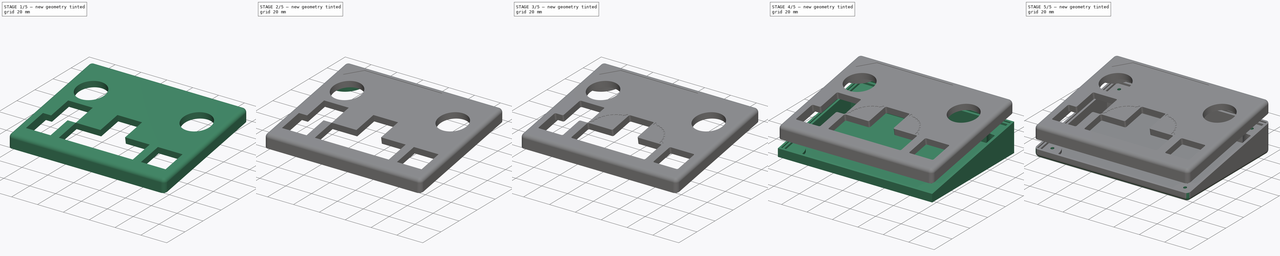
[diagram: build sequence overview — one tinted view per stage of 5, left to right]
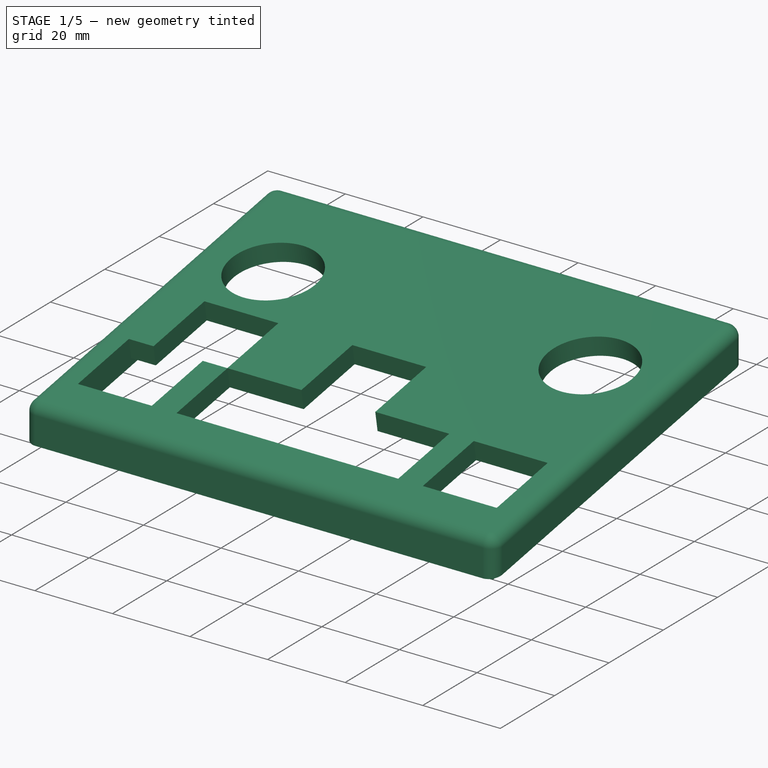
[diagram: stage 1 of 5 — iso view after this stage's code; geometry added in this stage tinted green]
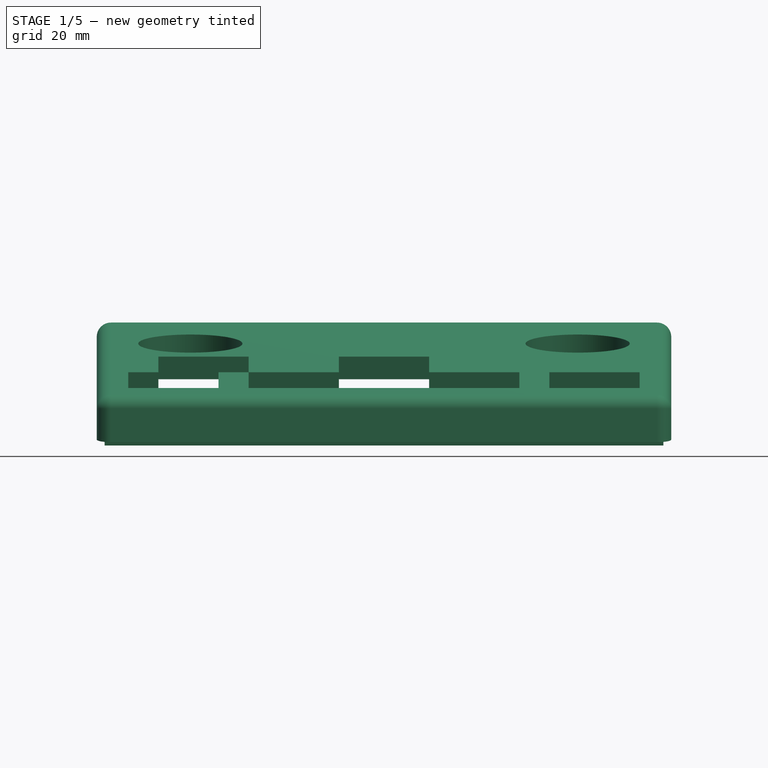
[diagram: stage 1 of 5 — front view after this stage's code; geometry added in this stage tinted green]
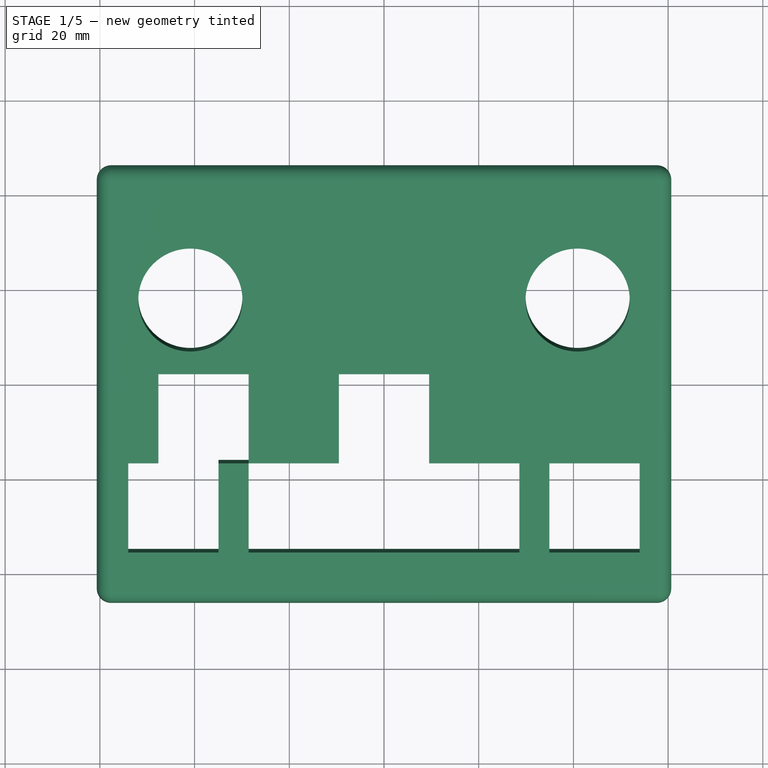
[diagram: stage 1 of 5 — top view after this stage's code; geometry added in this stage tinted green]
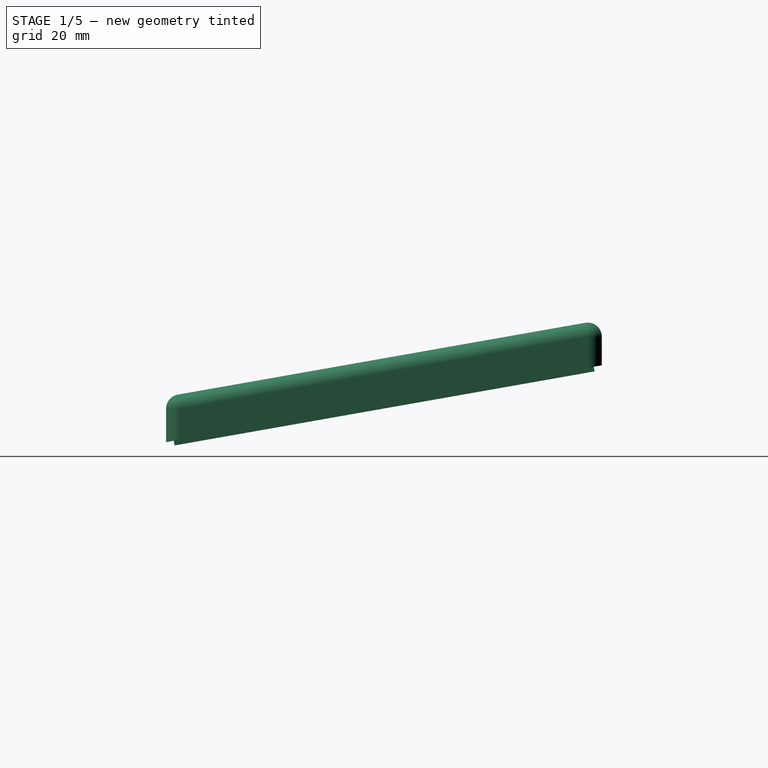
[diagram: stage 1 of 5 — right view after this stage's code; geometry added in this stage tinted green]
FCSTD DOCUMENT  (FreeCAD 0.20R29177 +426 (Git))
Label: JoyKeyCase
License: All rights reserved
LicenseURL: http://en.wikipedia.org/wiki/All_rights_reserved
objects: Sketcher::SketchObject×18, PartDesign::Pocket×12, PartDesign::Pad×6, PartDesign::Fillet×3, PartDesign::Body×2, App::Part×2, Spreadsheet::Sheet×1, PartDesign::Thickness×1, PartDesign::Plane×1, PartDesign::Mirrored×1
note: 66 computed .brp shape members not serialized (recipe doc carries the construction recipe); baked Part::Feature solids carry a one-line shape summary decoded from their .brp

FEATURE [Sketcher::SketchObject] Sketch006  label="LidSketch"
  FullyConstrained = true
  MapMode = 5
  Placement = pos=(0,0,0) rot=(0.57735,0.57735,0.57735;2.0944rad)
  Support = -> [YZ_Plane003]
  expr: .Constraints.Depth = (<<Params>>.PcbDepth + 2 * <<Params>>.WallOffset) * cos(<<Params>>.Slope) + 2 * <<Params>>.WallThickness
  expr: Constraints[10] = <<Params>>.BottomHeight * 2
  expr: Constraints[6] = <<Params>>.Slope
  expr: Constraints[7] = <<Params>>.Clearance + max(<<Params>>.WallThickness; <<Params>>.ThreadedInsertDepth + 1)
  expr: Constraints[9] = .Constraints.Depth / 2
  sketch-geometry (4):
    g0: LineSegment StartX=-46.0164 StartY=10 StartZ=0 EndX=-46.0164 EndY=19.6 EndZ=0
    g1: LineSegment StartX=-46.0164 StartY=19.6 StartZ=0 EndX=46.0164 EndY=35.8279 EndZ=0
    g2: LineSegment StartX=46.0164 StartY=35.8279 StartZ=0 EndX=46.0164 EndY=26.2279 EndZ=0
    g3: LineSegment StartX=46.0164 StartY=26.2279 StartZ=0 EndX=-46.0164 EndY=10 EndZ=0
  constraints (12):
    c: Vertical(g0)
    c: Coincident(g0,g1)
    c: Coincident(g1,g2)
    c: Coincident(g2,g3)
    c: Coincident(g3,g0)
    c: Parallel(g1,g3)
    c: Angle(g-1,g3) = 0.174533
    c: DistanceY(g0,g0) = 9.6
    c: DistanceX(g1,g1) = 92.0328  'Depth'
    c: DistanceX(g0,g-1) = 46.0164
    c: DistanceY(g-1,g0) = 10
    c: Vertical(g2)
FEATURE [PartDesign::Pad] Pad005  label="Lid"
  Direction = (1,-2e-16,3e-16)
  Length = 121.3
  Length2 = 10
  Midplane = true
  Placement = pos=(0,0,0) rot=(0.57735,0.57735,0.57735;2.0944rad)
  Profile = -> Sketch006
  ReferenceAxis = -> Sketch006 [N_Axis]
  Type = 0
  expr: Length = <<Params>>.PcbWidth + 2 * <<Params>>.WallThickness + 2 * <<Params>>.WallOffset
FEATURE [PartDesign::Fillet] Fillet
  Base = -> Pad005 [Edge2,Edge3,Edge4,Edge5,Edge6,Edge7,Edge9,Edge10]
  BaseFeature = -> Pad005
  Placement = pos=(0,0,0) rot=(0.57735,0.57735,0.57735;2.0944rad)
  Radius = 3
  SupportTransform = false
  UseAllEdges = false
  expr: Radius = <<Params>>.FilletRadius
FEATURE [Sketcher::SketchObject] Sketch007  label="TopLipSketch"
  ExternalGeometry = -> [Fillet]
  FullyConstrained = true
  MapMode = 5
  Placement = pos=(-6.2e-15,-3.09767,17.5677) rot=(0.705758,0.705758,0.061746;3.26493rad)
  Support = -> [Fillet]
  expr: Constraints[10] = <<Params>>.PcbDepth + <<Params>>.WallThickness * (1 + 0.9 * 0.5) + <<Params>>.WallOffset * 2
  expr: Constraints[11] = <<Params>>.PcbWidth + <<Params>>.WallThickness * (1 + 0.9 * 0.5) + <<Params>>.WallOffset * 2
  expr: Constraints[8] = <<Params>>.PcbDepth + <<Params>>.WallThickness * 0.9 + <<Params>>.WallOffset * 2
  expr: Constraints[9] = <<Params>>.PcbWidth + <<Params>>.WallOffset * 2 + <<Params>>.WallThickness * 0.9
  sketch-geometry (4):
    g0: LineSegment StartX=-41.9308 StartY=59 StartZ=0 EndX=48.1292 EndY=59 EndZ=0
    g1: LineSegment StartX=48.1292 StartY=59 StartZ=0 EndX=48.1292 EndY=-59 EndZ=0
    g2: LineSegment StartX=48.1292 StartY=-59 StartZ=0 EndX=-41.9308 EndY=-59 EndZ=0
    g3: LineSegment StartX=-41.9308 StartY=-59 StartZ=0 EndX=-41.9308 EndY=59 EndZ=0
  constraints (12):
    c: Coincident(g0,g1)
    c: Coincident(g1,g2)
    c: Coincident(g2,g3)
    c: Coincident(g3,g0)
    c: Horizontal(g0)
    c: Horizontal(g2)
    c: Vertical(g1)
    c: Vertical(g3)
    c: DistanceX(g0,g0) = 90.06
    c: DistanceY(g1,g1) = 118
    c: DistanceX(g-4,g0) = 91.71
    c: DistanceY(g2,g-3) = 119.65
FEATURE [PartDesign::Pad] Pad006  label="TopLip"
  BaseFeature = -> Fillet
  Direction = (4e-16,0.173648,-0.984808)
  Length = 1
  Length2 = 10
  Placement = pos=(0,0,0) rot=(0.57735,0.57735,0.57735;2.0944rad)
  Profile = -> Sketch007
  ReferenceAxis = -> Sketch007 [N_Axis]
  Type = 0
FEATURE [Sketcher::SketchObject] Sketch008  label="ClearanceSketch"
  ExternalGeometry = -> [Pad006]
  FullyConstrained = true
  MapMode = 5
  Placement = pos=(-7.6e-15,-2.92402,16.5829) rot=(0.705758,0.705758,0.061746;3.26493rad)
  Support = -> [Pad006]
  expr: Constraints[10] = <<Params>>.WallThickness
  expr: Constraints[11] = <<Params>>.WallThickness
  expr: Constraints[8] = <<Params>>.PcbDepth + <<Params>>.WallOffset * 2
  expr: Constraints[9] = <<Params>>.PcbWidth + <<Params>>.WallOffset * 2
  sketch-geometry (4):
    g0: LineSegment StartX=-40.5808 StartY=57.65 StartZ=0 EndX=46.7792 EndY=57.65 EndZ=0
    g1: LineSegment StartX=46.7792 StartY=57.65 StartZ=0 EndX=46.7792 EndY=-57.65 EndZ=0
    g2: LineSegment StartX=46.7792 StartY=-57.65 StartZ=0 EndX=-40.5808 EndY=-57.65 EndZ=0
    g3: LineSegment StartX=-40.5808 StartY=-57.65 StartZ=0 EndX=-40.5808 EndY=57.65 EndZ=0
  constraints (12):
    c: Coincident(g0,g1)
    c: Coincident(g1,g2)
    c: Coincident(g2,g3)
    c: Coincident(g3,g0)
    c: Horizontal(g0)
    c: Horizontal(g2)
    c: Vertical(g1)
    c: Vertical(g3)
    c: DistanceX(g0,g0) = 87.36
    c: DistanceY(g1,g1) = 115.3
    c: DistanceY(g0,g-3) = 3
    c: DistanceX(g-4,g0) = 3
FEATURE [PartDesign::Pocket] Pocket001  label="ClearancePocket"
  BaseFeature = -> Pad006
  Direction = (-4e-16,-0.173648,0.984808)
  Length = 5.6
  Length2 = 5
  Placement = pos=(0,0,0) rot=(0.57735,0.57735,0.57735;2.0944rad)
  Profile = -> Sketch008
  ReferenceAxis = -> Sketch008 [N_Axis]
  Type = 0
  expr: Length = <<Params>>.Clearance + 1
FEATURE [PartDesign::Pocket] Pocket002  label="TopHoles"
  BaseFeature = -> Pocket001
  Direction = (4e-16,0.173648,-0.984808)
  Length = 5
  Length2 = 5
  Placement = pos=(0,0,0) rot=(0.57735,0.57735,0.57735;2.0944rad)
  Profile = -> Sketch010
  ReferenceAxis = -> Sketch010 [N_Axis]
  Type = 0
  expr: Length = max(<<Params>>.WallThickness; <<Params>>.ThreadedInsertDepth + 1)
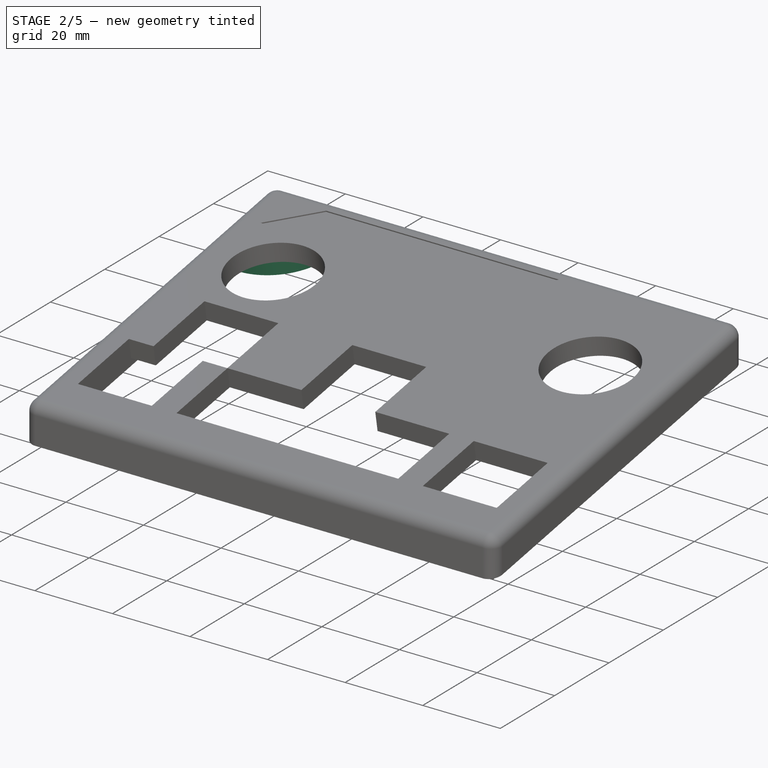
[diagram: stage 2 of 5 — iso view after this stage's code; geometry added in this stage tinted green]
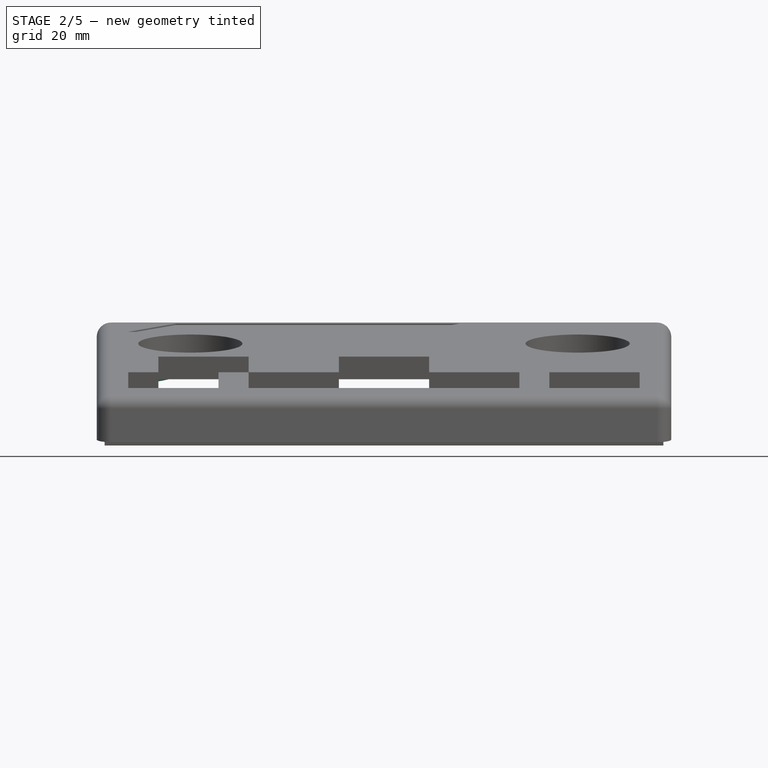
[diagram: stage 2 of 5 — front view after this stage's code; geometry added in this stage tinted green]
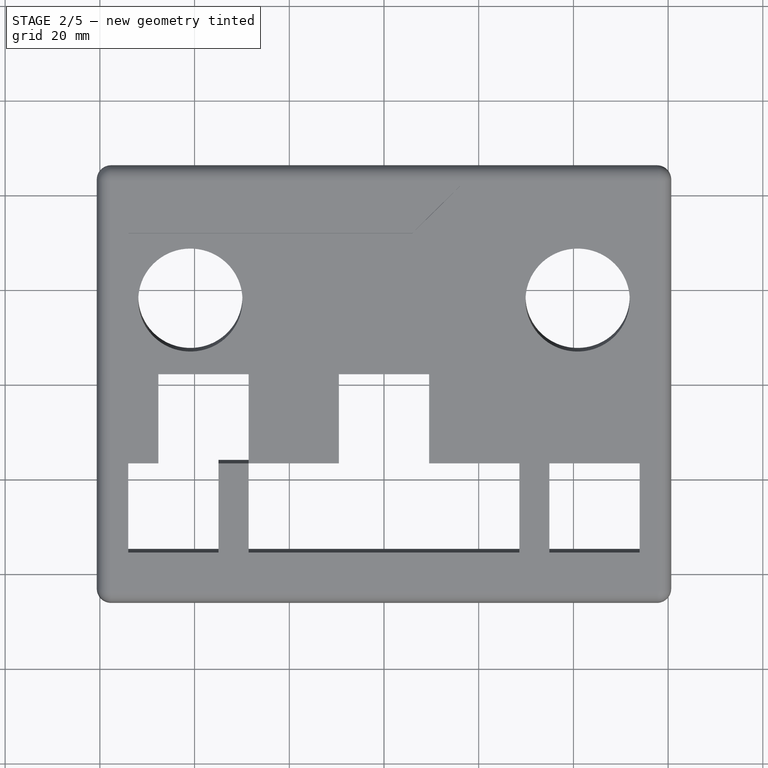
[diagram: stage 2 of 5 — top view after this stage's code; geometry added in this stage tinted green]
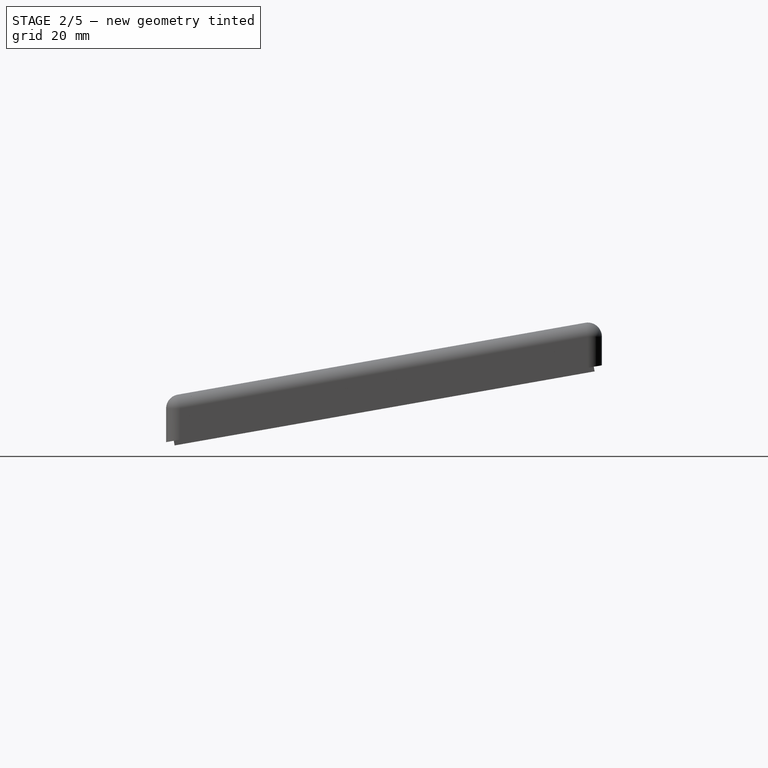
[diagram: stage 2 of 5 — right view after this stage's code; geometry added in this stage tinted green]
FEATURE [Sketcher::SketchObject] Sketch011  label="TopScrewColumnsSketch"
  ExternalGeometry = -> [Pocket002]
  FullyConstrained = true
  MapMode = 5
  Placement = pos=(-7.7e-15,-2.92402,16.5829) rot=(0.705758,0.705758,0.061746;3.26493rad)
  Support = -> [Pocket002]
  expr: .Constraints.Diam = <<Params>>.ScrewDistance + <<Params>>.WallOffset + <<Params>>.ThreadedInsertDiameter + 6
  expr: Constraints[7] = .Constraints.Diam
  sketch-geometry (6):
    g0: ArcOfCircle CenterX=46.7792 CenterY=-57.65 CenterZ=0 NormalX=0 NormalY=0 NormalZ=1 AngleXU=0 Radius=14.7 StartAngle=1.5708 EndAngle=3.14159
    g1: LineSegment StartX=32.0792 StartY=-57.65 StartZ=0 EndX=46.7792 EndY=-57.65 EndZ=0
    g2: LineSegment StartX=46.7792 StartY=-42.95 StartZ=0 EndX=46.7792 EndY=-57.65 EndZ=0
    g3: ArcOfCircle CenterX=46.7792 CenterY=57.65 CenterZ=0 NormalX=0 NormalY=0 NormalZ=1 AngleXU=0 Radius=14.7 StartAngle=3.14159 EndAngle=4.71239
    g4: LineSegment StartX=32.0792 StartY=57.65 StartZ=0 EndX=46.7792 EndY=57.65 EndZ=0
    g5: LineSegment StartX=46.7792 StartY=57.65 StartZ=0 EndX=46.7792 EndY=42.95 EndZ=0
  constraints (16):
    c: Coincident(g0,g-5)
    c: Coincident(g1,g0)
    c: Coincident(g1,g0)
    c: Coincident(g2,g0)
    c: Coincident(g2,g0)
    c: Horizontal(g1)
    c: Vertical(g2)
    c: Radius(g0) = 14.7
    c: Coincident(g3,g-5)
    c: Coincident(g4,g3)
    c: Coincident(g4,g3)
    c: Horizontal(g4)
    c: Radius(g3) = 14.7  'Diam'
    c: Coincident(g5,g3)
    c: Coincident(g5,g3)
    c: Vertical(g5)
FEATURE [PartDesign::Pad] Pad008  label="TopScrewColumns"
  BaseFeature = -> Pocket002
  Direction = (5e-16,0.173648,-0.984808)
  Length = 10
  Length2 = 10
  Placement = pos=(0,0,0) rot=(0.57735,0.57735,0.57735;2.0944rad)
  Profile = -> Sketch011
  ReferenceAxis = -> Sketch011 [N_Axis]
  Type = 3
  UpToFace = -> Pocket002 [Face50]
FEATURE [Sketcher::SketchObject] Sketch013  label="LogoSketch"
  ExternalGeometry = -> [Pad008]
  FullyConstrained = true
  MapMode = 5
  Placement = pos=(-1.01e-14,-4.73936,26.8783) rot=(0.086827,0.086827,-0.992433;1.57839rad)
  Support = -> [Pad008]
  sketch-geometry (4):
    g0: LineSegment StartX=-46.9635 StartY=-44 StartZ=0 EndX=-46.9635 EndY=16 EndZ=0
    g1: LineSegment StartX=-46.9635 StartY=16 StartZ=0 EndX=-36.9635 EndY=6 EndZ=0
    g2: LineSegment StartX=-36.9635 StartY=6 StartZ=0 EndX=-36.9635 EndY=-54 EndZ=0
    g3: LineSegment StartX=-36.9635 StartY=-54 StartZ=0 EndX=-46.9635 EndY=-44 EndZ=0
  constraints (12):
    c: Vertical(g0)
    c: Coincident(g0,g1)
    c: Coincident(g1,g2)
    c: Vertical(g2)
    c: Coincident(g2,g3)
    c: Coincident(g3,g0)
    c: Angle(g2,g3) = 0.785398
    c: Angle(g0,g1) = 0.785398
    c: DistanceY(g0,g0) = 60
    c: DistanceX(g0,g1) = 10
    c: DistanceX(g-4,g0) = 1
    c: DistanceY(g2,g-5) = 0
FEATURE [PartDesign::Pocket] Pocket004  label="LogoPocket"
  BaseFeature = -> Pad008
  Direction = (4e-16,0.173648,-0.984808)
  Length = 0.3
  Length2 = 5
  Placement = pos=(0,0,0) rot=(0.57735,0.57735,0.57735;2.0944rad)
  Profile = -> Sketch013
  ReferenceAxis = -> Sketch013 [N_Axis]
  Type = 0
FEATURE [Sketcher::SketchObject] Sketch014  label="TopFrontInsertSketch"
  ExternalGeometry = -> [Pocket004]
  FullyConstrained = true
  MapMode = 5
  Placement = pos=(-1.05e-14,-3.89645,22.0978) rot=(0.705758,0.705758,0.061746;3.26493rad)
  Support = -> [Pocket004]
  expr: Constraints[0] = <<Params>>.ScrewDistance + <<Params>>.WallOffset - <<Params>>.Clearance * sin(<<Params>>.Slope)
  expr: Constraints[1] = <<Params>>.ScrewDistance + <<Params>>.WallOffset
  expr: Constraints[2] = <<Params>>.ThreadedInsertDiameter
  expr: Constraints[3] = <<Params>>.ScrewDistance + <<Params>>.WallOffset
  expr: Constraints[4] = <<Params>>.ThreadedInsertDiameter
  sketch-geometry (2):
    g0: Circle CenterX=-35.8796 CenterY=52.15 CenterZ=0 NormalX=0 NormalY=0 NormalZ=1 AngleXU=0 Radius=1.6
    g1: Circle CenterX=-35.8796 CenterY=-52.15 CenterZ=0 NormalX=0 NormalY=0 NormalZ=1 AngleXU=0 Radius=1.6
  constraints (6):
    c: DistanceX(g-3,g0) = 4.70122
    c: DistanceY(g0,g-3) = 5.5
    c: Diameter(g0) = 3.2
    c: DistanceY(g-3,g1) = 5.5
    c: Diameter(g1) = 3.2
    c: Vertical(g0,g1)
FEATURE [PartDesign::Pocket] Pocket005  label="TopFrontInsertPockets"
  BaseFeature = -> Pocket004
  Direction = (-5e-16,-0.173648,0.984808)
  Length = 4
  Length2 = 5
  Placement = pos=(0,0,0) rot=(0.57735,0.57735,0.57735;2.0944rad)
  Profile = -> Sketch014
  ReferenceAxis = -> Sketch014 [N_Axis]
  Type = 0
  expr: Length = <<Params>>.ThreadedInsertDepth
FEATURE [Sketcher::SketchObject] Sketch015  label="TopBackInsertSketch"
  ExternalGeometry = -> [Pocket005]
  FullyConstrained = true
  MapMode = 5
  Placement = pos=(-8.2e-15,-2.92402,16.5829) rot=(0.705758,0.705758,0.061746;3.26493rad)
  Support = -> [Pocket005]
  expr: Constraints[0] = <<Params>>.ThreadedInsertDiameter
  expr: Constraints[1] = <<Params>>.ThreadedInsertDiameter
  expr: Constraints[2] = <<Params>>.ScrewDistance + <<Params>>.WallOffset
  expr: Constraints[3] = <<Params>>.ScrewDistance + <<Params>>.WallOffset + <<Params>>.Clearance * sin(<<Params>>.Slope)
  expr: Constraints[4] = <<Params>>.ScrewDistance + <<Params>>.WallOffset
  sketch-geometry (2):
    g0: Circle CenterX=41.2792 CenterY=51.3512 CenterZ=0 NormalX=0 NormalY=0 NormalZ=1 AngleXU=0 Radius=1.6
    g1: Circle CenterX=41.2792 CenterY=-52.15 CenterZ=0 NormalX=0 NormalY=0 NormalZ=1 AngleXU=0 Radius=1.6
  constraints (6):
    c: Diameter(g0) = 3.2
    c: Diameter(g1) = 3.2
    c: DistanceX(g1,g-4) = 5.5
    c: DistanceY(g0,g-3) = 6.29878
    c: DistanceY(g-4,g1) = 5.5
    c: Vertical(g0,g1)
FEATURE [PartDesign::Pocket] Pocket006  label="TopBackInsertPockets"
  BaseFeature = -> Pocket005
  Direction = (-5e-16,-0.173648,0.984808)
  Length = 4
  Length2 = 5
  Placement = pos=(0,0,0) rot=(0.57735,0.57735,0.57735;2.0944rad)
  Profile = -> Sketch015
  ReferenceAxis = -> Sketch015 [N_Axis]
  Type = 0
  expr: Length = <<Params>>.ThreadedInsertDepth
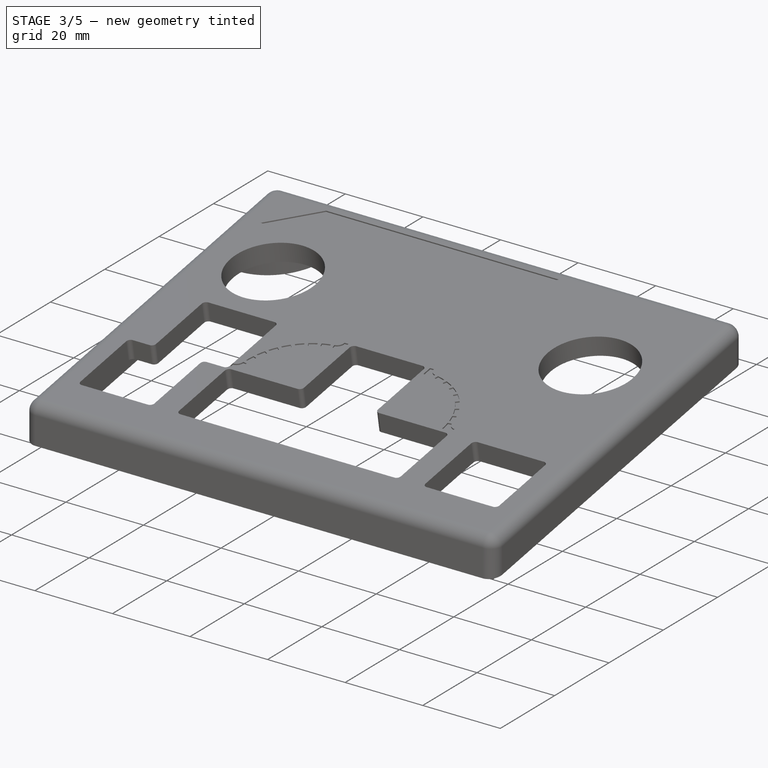
[diagram: stage 3 of 5 — iso view after this stage's code; geometry added in this stage tinted green]
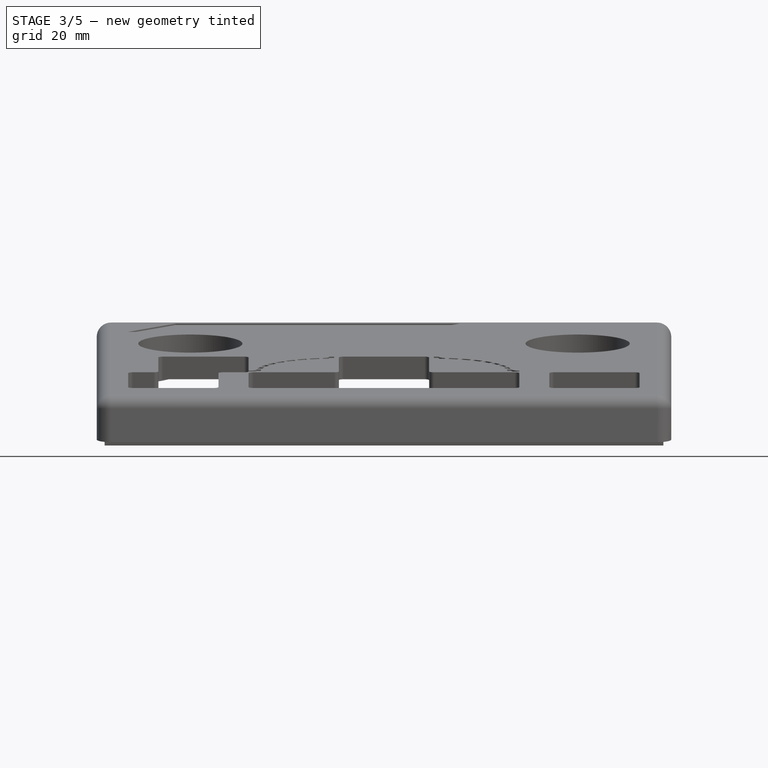
[diagram: stage 3 of 5 — front view after this stage's code; geometry added in this stage tinted green]
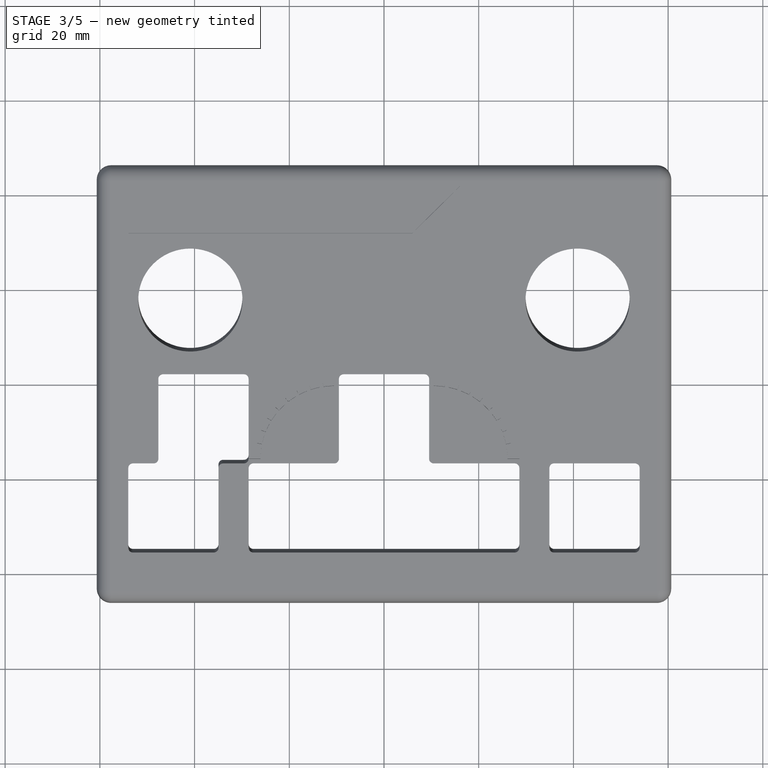
[diagram: stage 3 of 5 — top view after this stage's code; geometry added in this stage tinted green]
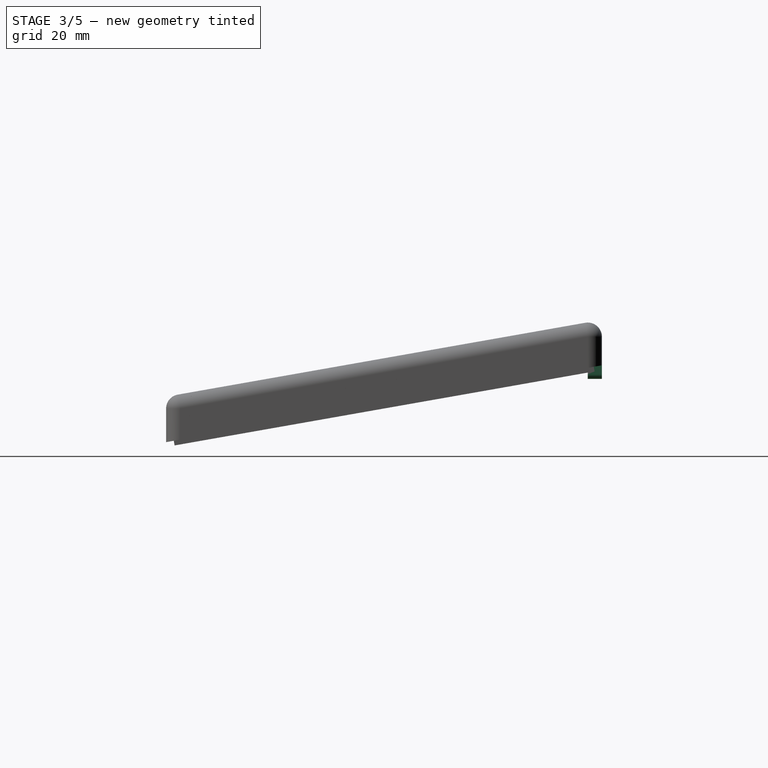
[diagram: stage 3 of 5 — right view after this stage's code; geometry added in this stage tinted green]
FEATURE [Sketcher::SketchObject] Sketch016  label="SwitchHoleSketch"
  ExternalGeometry = -> [Pocket006]
  FullyConstrained = true
  MapMode = 5
  Placement = pos=(1.23e-14,46.0685,8.12312) rot=(0.60812,0.60812,-0.510274;2.19793rad)
  Support = -> [Pocket006]
  expr: Constraints[10] = <<Params>>.WallOffset + 20
  expr: Constraints[11] = <<Params>>.WallOffset + 28
  expr: Constraints[9] = <<Params>>.Clearance
  sketch-geometry (4):
    g0: LineSegment StartX=-22.4387 StartY=37.15 StartZ=0 EndX=-17.8387 EndY=37.15 EndZ=0
    g1: LineSegment StartX=-17.8387 StartY=37.15 StartZ=0 EndX=-17.8387 EndY=29.15 EndZ=0
    g2: LineSegment StartX=-17.8387 StartY=29.15 StartZ=0 EndX=-22.4387 EndY=29.15 EndZ=0
    g3: LineSegment StartX=-22.4387 StartY=29.15 StartZ=0 EndX=-22.4387 EndY=37.15 EndZ=0
  constraints (12):
    c: Coincident(g0,g1)
    c: Coincident(g1,g2)
    c: Coincident(g2,g3)
    c: Coincident(g3,g0)
    c: Horizontal(g0)
    c: Horizontal(g2)
    c: Vertical(g1)
    c: Vertical(g3)
    c: DistanceX(g-3,g0) = 0
    c: DistanceX(g0,g0) = 4.6
    c: DistanceY(g0,g-6) = 20.5
    c: DistanceY(g1,g-6) = 28.5
FEATURE [PartDesign::Pocket] Pocket007  label="SwitchHole"
  BaseFeature = -> Pocket006
  Direction = (3e-16,0.984808,0.173648)
  Length = 3.04628
  Length2 = 5
  Placement = pos=(0,0,0) rot=(0.57735,0.57735,0.57735;2.0944rad)
  Profile = -> Sketch016
  ReferenceAxis = -> Sketch016 [N_Axis]
  Type = 1
FEATURE [Sketcher::SketchObject] Sketch018  label="TopCableHoldSketch"
  ExternalGeometry = -> [Pocket007]
  FullyConstrained = true
  MapMode = 5
  Placement = pos=(3.56e-14,46.0164,-1.01e-14) rot=(0.57735,0.57735,0.57735;4.18879rad)
  Support = -> [Pocket007]
  expr: Constraints[7] = <<Params>>.CablePocketDistance + 5.5 + 0.25 + <<Params>>.WallThickness + <<Params>>.WallOffset - <<Params>>.FilletRadius
  sketch-geometry (7):
    g0: LineSegment StartX=26.2279 StartY=-35.144 StartZ=0 EndX=26.2279 EndY=-25.644 EndZ=0
    g1: LineSegment StartX=26.2279 StartY=-25.644 StartZ=0 EndX=21.2279 EndY=-25.644 EndZ=0
    g2: LineSegment StartX=21.2279 StartY=-35.144 StartZ=0 EndX=26.2279 EndY=-35.144 EndZ=0
    g3: ArcOfCircle CenterX=19.6666 CenterY=-30.394 CenterZ=0 NormalX=0 NormalY=0 NormalZ=1 AngleXU=0 Radius=5 StartAngle=5.02995 EndAngle=7.53642
    g4: LineSegment StartX=21.2279 StartY=-25.644 StartZ=0 EndX=21.2279 EndY=-30.394 EndZ=0
    g5: LineSegment StartX=21.2279 StartY=-30.394 StartZ=0 EndX=21.2279 EndY=-35.144 EndZ=0
    g6: LineSegment StartX=19.6666 StartY=-30.394 StartZ=0 EndX=21.2279 EndY=-30.394 EndZ=0
  constraints (20):
    c: Coincident(g0,g1)
    c: Horizontal(g1)
    c: Coincident(g2,g0)
    c: Horizontal(g2)
    c: Equal(g1,g2)
    c: DistanceX(g1,g1) = 5
    c: DistanceY(g0,g0) = 9.5
    c: DistanceY(g-3,g0) = 22.506
    c: Coincident(g3,g1)
    c: Coincident(g3,g2)
    c: Diameter(g3) = 10
    c: Coincident(g4,g1)
    c: Vertical(g4)
    c: Coincident(g5,g4)
    c: Coincident(g5,g2)
    c: Vertical(g5)
    c: Equal(g4,g5)
    c: Coincident(g6,g3)
    c: Coincident(g6,g4)
    c: PointOnObject(g0,g-3)
FEATURE [PartDesign::Pad] Pad009  label="TopCableHold"
  BaseFeature = -> Pocket007
  Direction = (0,-1,0)
  Length = 3
  Length2 = 10
  Placement = pos=(0,0,0) rot=(0.57735,0.57735,0.57735;2.0944rad)
  Profile = -> Sketch018
  ReferenceAxis = -> Sketch018 [N_Axis]
  Type = 0
  UseCustomVector = true
FEATURE [PartDesign::Body] Body  label="BottomBody"
  Group = -> [Sketch,Pad,Thickness,Sketch001,Pocket,DatumPlane,Sketch009,Pad007,Fillet001,Sketch017,Pocket008,Sketch019,Pocket009,Sketch020,Pocket010,Sketch021,Pocket011]
  Origin = -> Origin
  Tip = -> Pocket011
FEATURE [App::Part] Part  label="Bottom"
  Group = -> [Body]
  Origin = -> Origin001
FEATURE [Sketcher::SketchObject] Sketch022  label="DecoSketch"
  ExternalGeometry = -> [Pad009]
  FullyConstrained = false
  MapMode = 5
  Placement = pos=(-1.14e-14,-4.73936,26.8783) rot=(0.086827,0.086827,-0.992433;1.57839rad)
  Support = -> [Pad009]
  sketch-geometry (58):
    g0: LineSegment StartX=-5.28849 StartY=10.525 StartZ=0 EndX=11.2615 EndY=10.525 EndZ=0
    g1: LineSegment StartX=11.2615 StartY=10.525 StartZ=0 EndX=11.2615 EndY=27.075 EndZ=0
    g2: ArcOfCircle CenterX=11.2615 CenterY=10.525 CenterZ=0 NormalX=0 NormalY=0 NormalZ=1 AngleXU=0 Radius=16.55 StartAngle=1.5708 EndAngle=3.14159
    g3: ArcOfCircle CenterX=11.2615 CenterY=10.525 CenterZ=0 NormalX=0 NormalY=0 NormalZ=1 AngleXU=0 Radius=15.55 StartAngle=1.5708 EndAngle=3.14159
    g4: ArcOfCircle CenterX=11.2615 CenterY=10.525 CenterZ=0 NormalX=0 NormalY=0 NormalZ=1 AngleXU=0 Radius=15.55 StartAngle=2.99324 EndAngle=3.14159
    g5: ArcOfCircle CenterX=-6.78516 CenterY=13.2221 CenterZ=0 NormalX=0 NormalY=0 NormalZ=1 AngleXU=0 Radius=1.6971 StartAngle=4.71043 EndAngle=6.13483
    g6: LineSegment StartX=-5.10671 StartY=12.9712 StartZ=0 EndX=-4.11769 EndY=12.8234 EndZ=0
    g7: LineSegment StartX=-4.28849 StartY=10.525 StartZ=0 EndX=-6.78849 EndY=10.525 EndZ=0
    g8: LineSegment StartX=-6.78849 StartY=10.525 StartZ=0 EndX=-6.78849 EndY=11.525 EndZ=0
    g9: LineSegment StartX=-4.11769 StartY=12.8234 StartZ=0 EndX=11.2615 EndY=10.525 EndZ=0
    g10: LineSegment StartX=11.2615 StartY=10.525 StartZ=0 EndX=-3.97632 EndY=13.6252 EndZ=0
    g11: ArcOfCircle CenterX=11.2615 CenterY=10.525 CenterZ=0 NormalX=0 NormalY=0 NormalZ=1 AngleXU=0 Radius=15.55 StartAngle=2.81871 EndAngle=2.94088
    g12: LineSegment StartX=11.2615 StartY=10.525 StartZ=0 EndX=-3.48493 EndY=15.4591 EndZ=0
    g13: LineSegment StartX=-3.97632 StartY=13.6252 StartZ=0 EndX=-4.95625 EndY=13.8245 EndZ=0
    g14: LineSegment StartX=-3.48493 StartY=15.4591 StartZ=0 EndX=-4.43325 EndY=15.7764 EndZ=0
    g15: ArcOfCircle CenterX=11.2615 CenterY=10.525 CenterZ=0 NormalX=0 NormalY=0 NormalZ=1 AngleXU=0 Radius=16.55 StartAngle=2.81871 EndAngle=2.94088
    g16: ArcOfCircle CenterX=11.2615 CenterY=10.525 CenterZ=0 NormalX=0 NormalY=0 NormalZ=1 AngleXU=0 Radius=15.55 StartAngle=2.64417 EndAngle=2.76635
    g17: ArcOfCircle CenterX=11.2615 CenterY=10.525 CenterZ=0 NormalX=0 NormalY=0 NormalZ=1 AngleXU=0 Radius=16.55 StartAngle=2.64417 EndAngle=2.76635
    g18: LineSegment StartX=-3.20649 StartY=16.2241 StartZ=0 EndX=-4.1369 EndY=16.5906 EndZ=0
    g19: LineSegment StartX=-2.4041 StartY=17.9448 StartZ=0 EndX=-3.28292 EndY=18.422 EndZ=0
    g20: LineSegment StartX=11.2615 StartY=10.525 StartZ=0 EndX=-3.20649 EndY=16.2241 EndZ=0
    g21: LineSegment StartX=11.2615 StartY=10.525 StartZ=0 EndX=-2.4041 EndY=17.9448 EndZ=0
    g22: LineSegment StartX=11.2615 StartY=10.525 StartZ=0 EndX=-1.99705 EndY=18.6499 EndZ=0
    g23: LineSegment StartX=11.2615 StartY=10.525 StartZ=0 EndX=-0.90805 EndY=20.2051 EndZ=0
    g24: ArcOfCircle CenterX=11.2615 CenterY=10.525 CenterZ=0 NormalX=0 NormalY=0 NormalZ=1 AngleXU=0 Radius=15.55 StartAngle=2.46964 EndAngle=2.59181
    g25: ArcOfCircle CenterX=11.2615 CenterY=10.525 CenterZ=0 NormalX=0 NormalY=0 NormalZ=1 AngleXU=0 Radius=16.55 StartAngle=2.46964 EndAngle=2.59181
    g26: LineSegment StartX=-1.69066 StartY=20.8276 StartZ=0 EndX=-0.90805 EndY=20.2051 EndZ=0
    g27: LineSegment StartX=-2.84969 StartY=19.1724 StartZ=0 EndX=-1.99705 EndY=18.6499 EndZ=0
    g28: LineSegment StartX=11.2615 StartY=10.525 StartZ=0 EndX=-0.384755 EndY=20.8287 EndZ=0
    g29: LineSegment StartX=11.2615 StartY=10.525 StartZ=0 EndX=0.957765 EndY=22.1713 EndZ=0
    g30: ArcOfCircle CenterX=11.2615 CenterY=10.525 CenterZ=0 NormalX=0 NormalY=0 NormalZ=1 AngleXU=0 Radius=15.55 StartAngle=2.29511 EndAngle=2.41728
    g31: ArcOfCircle CenterX=11.2615 CenterY=10.525 CenterZ=0 NormalX=0 NormalY=0 NormalZ=1 AngleXU=0 Radius=16.55 StartAngle=2.29511 EndAngle=2.41728
    g32: LineSegment StartX=-1.13371 StartY=21.4914 StartZ=0 EndX=-0.384755 EndY=20.8287 EndZ=0
    g33: LineSegment StartX=0.295145 StartY=22.9202 StartZ=0 EndX=0.957765 EndY=22.1713 EndZ=0
    g34: LineSegment StartX=11.2615 StartY=10.525 StartZ=0 EndX=1.5814 EndY=22.6946 EndZ=0
    g35: LineSegment StartX=11.2615 StartY=10.525 StartZ=0 EndX=3.13665 EndY=23.7836 EndZ=0
    g36: ArcOfCircle CenterX=11.2615 CenterY=10.525 CenterZ=0 NormalX=0 NormalY=0 NormalZ=1 AngleXU=0 Radius=15.55 StartAngle=2.12058 EndAngle=2.24275
    g37: ArcOfCircle CenterX=11.2615 CenterY=10.525 CenterZ=0 NormalX=0 NormalY=0 NormalZ=1 AngleXU=0 Radius=16.55 StartAngle=2.12058 EndAngle=2.24275
    g38: LineSegment StartX=0.95889 StartY=23.4772 StartZ=0 EndX=1.5814 EndY=22.6946 EndZ=0
    g39: LineSegment StartX=2.61416 StartY=24.6362 StartZ=0 EndX=3.13665 EndY=23.7836 EndZ=0
    g40: LineSegment StartX=11.2615 StartY=10.525 StartZ=0 EndX=3.84169 EndY=24.1906 EndZ=0
    g41: LineSegment StartX=11.2615 StartY=10.525 StartZ=0 EndX=5.56241 EndY=24.993 EndZ=0
    g42: ArcOfCircle CenterX=11.2615 CenterY=10.525 CenterZ=0 NormalX=0 NormalY=0 NormalZ=1 AngleXU=0 Radius=15.55 StartAngle=1.94604 EndAngle=2.06822
    g43: ArcOfCircle CenterX=11.2615 CenterY=10.525 CenterZ=0 NormalX=0 NormalY=0 NormalZ=1 AngleXU=0 Radius=16.55 StartAngle=1.94604 EndAngle=2.06822
    g44: LineSegment StartX=3.36453 StartY=25.0694 StartZ=0 EndX=3.84169 EndY=24.1906 EndZ=0
    g45: LineSegment StartX=5.19591 StartY=25.9234 StartZ=0 EndX=5.56241 EndY=24.993 EndZ=0
    g46: LineSegment StartX=11.2615 StartY=10.525 StartZ=0 EndX=6.32742 EndY=25.2714 EndZ=0
    g47: LineSegment StartX=11.2615 StartY=10.525 StartZ=0 EndX=8.16134 EndY=25.7628 EndZ=0
    g48: ArcOfCircle CenterX=11.2615 CenterY=10.525 CenterZ=0 NormalX=0 NormalY=0 NormalZ=1 AngleXU=0 Radius=15.55 StartAngle=1.77151 EndAngle=1.89368
    g49: ArcOfCircle CenterX=11.2615 CenterY=10.525 CenterZ=0 NormalX=0 NormalY=0 NormalZ=1 AngleXU=0 Radius=16.55 StartAngle=1.77151 EndAngle=1.89368
    g50: LineSegment StartX=6.01011 StartY=26.2198 StartZ=0 EndX=6.32742 EndY=25.2714 EndZ=0
    g51: LineSegment StartX=7.96197 StartY=26.7428 StartZ=0 EndX=8.16134 EndY=25.7628 EndZ=0
    g52: LineSegment StartX=11.2615 StartY=10.525 StartZ=0 EndX=8.96307 EndY=25.9042 EndZ=0
    g53: LineSegment StartX=11.2615 StartY=26.075 StartZ=0 EndX=11.2615 EndY=28.575 EndZ=0
    g54: ArcOfCircle CenterX=11.2615 CenterY=10.525 CenterZ=0 NormalX=0 NormalY=0 NormalZ=1 AngleXU=0 Radius=15.55 StartAngle=1.5708 EndAngle=1.71915
    g55: LineSegment StartX=8.96307 StartY=25.9042 StartZ=0 EndX=8.81526 EndY=26.8932 EndZ=0
    g56: LineSegment StartX=11.2615 StartY=28.575 StartZ=0 EndX=10.2615 EndY=28.575 EndZ=0
    g57: ArcOfCircle CenterX=8.5644 CenterY=28.5717 CenterZ=0 NormalX=0 NormalY=0 NormalZ=1 AngleXU=0 Radius=1.6971 StartAngle=4.86075 EndAngle=6.28515
  constraints (135):
    c: Horizontal(g0)
    c: Coincident(g1,g0)
    c: Vertical(g1)
    c: Coincident(g2,g0)
    c: Coincident(g2,g1)
    c: DistanceX(g1,g-7) = 1
    c: PointOnObject(g3,g0)
    c: PointOnObject(g3,g1)
    c: DistanceY(g3,g1) = 1
    c: Coincident(g4,g3)
    c: Coincident(g6,g5)
    c: Coincident(g6,g4)
    c: Coincident(g7,g4)
    c: Horizontal(g7)
    c: Coincident(g8,g7)
    c: Coincident(g8,g5)
    c: DistanceY(g8,g8) = 1
    c: DistanceX(g7,g7) = 2.5
    c: Coincident(g9,g4)
    c: Coincident(g9,g4)
    c: Angle(g9,g0) = 0.148353
    c: PointOnObject(g5,g9)
    c: Tangent(g5,g2) = 1.5708
    c: Coincident(g10,g4)
    c: PointOnObject(g10,g3)
    c: Angle(g10,g0) = 0.200713
    c: Coincident(g11,g4)
    c: Coincident(g11,g10)
    c: Coincident(g12,g4)
    c: Coincident(g12,g11)
    c: Angle(g12,g10) = 0.122173
    c: Coincident(g13,g11)
    c: PointOnObject(g13,g2)
    c: PointOnObject(g13,g10)
    c: Coincident(g14,g11)
    c: Coincident(g15,g4)
    c: Coincident(g15,g13)
    c: Coincident(g15,g14)
    c: Coincident(g16,g4)
    c: Coincident(g18,g16)
    c: Coincident(g18,g17)
    c: Coincident(g19,g16)
    c: Coincident(g19,g17)
    c: Coincident(g20,g4)
    c: Coincident(g20,g16)
    c: Angle(g20,g0) = 0.375246
    c: Coincident(g21,g4)
    c: Coincident(g21,g16)
    c: Angle(g21,g0) = 0.497419
    c: PointOnObject(g16,g3)
    c: Tangent(g14,g12)
    c: Tangent(g18,g20)
    c: Tangent(g19,g21)
    c: Coincident(g22,g4)
    c: PointOnObject(g22,g3)
    c: Coincident(g23,g4)
    c: Angle(g22,g0) = 0.549779
    c: Angle(g23,g0) = 0.671952
    c: Coincident(g24,g4)
    c: Coincident(g24,g22)
    c: Coincident(g24,g23)
    c: Coincident(g25,g4)
    c: PointOnObject(g25,g2)
    c: Coincident(g26,g25)
    c: Coincident(g26,g24)
    c: Coincident(g27,g25)
    c: Coincident(g27,g24)
    c: Tangent(g26,g23)
    c: Tangent(g27,g22)
    c: Coincident(g28,g4)
    c: Coincident(g29,g4)
    c: PointOnObject(g29,g3)
    c: Coincident(g30,g4)
    c: Coincident(g30,g28)
    c: Coincident(g30,g29)
    c: Coincident(g31,g4)
    c: PointOnObject(g31,g2)
    c: Coincident(g32,g31)
    c: Coincident(g32,g30)
    c: Coincident(g33,g31)
    c: Coincident(g33,g30)
    c: Tangent(g33,g29)
    c: Tangent(g32,g28)
    c: Angle(g28,g0) = 0.724312
    c: Angle(g29,g0) = 0.846485
    c: Coincident(g34,g4)
    c: Coincident(g35,g4)
    c: Angle(g34,g0) = 0.898845
    c: Angle(g35,g0) = 1.02102
    c: Coincident(g37,g4)
    c: PointOnObject(g37,g2)
    c: Coincident(g38,g37)
    c: Coincident(g38,g36)
    c: Coincident(g39,g37)
    c: Coincident(g39,g36)
    c: Tangent(g39,g35)
    c: Tangent(g38,g34)
    c: Coincident(g40,g4)
    c: PointOnObject(g40,g3)
    c: Coincident(g41,g4)
    c: Coincident(g42,g4)
    c: Coincident(g42,g40)
    c: Coincident(g42,g41)
    c: Coincident(g43,g4)
    c: PointOnObject(g43,g2)
    c: Coincident(g44,g43)
    c: Coincident(g45,g43)
    c: Angle(g40,g0) = 1.07338
    c: Angle(g41,g0) = 1.19555
    c: Tangent(g45,g41) = 1.5708
    c: Tangent(g44,g40) = 1.5708
    c: Coincident(g46,g4)
    c: Coincident(g47,g4)
    c: Angle(g46,g0) = 1.24791
    c: Angle(g47,g0) = 1.37008
    c: Coincident(g49,g4)
    c: PointOnObject(g49,g2)
    c: Coincident(g50,g49)
    c: Coincident(g50,g48)
    c: Coincident(g51,g49)
    c: Coincident(g51,g48)
    c: Tangent(g50,g46)
    c: Tangent(g51,g47)
    c: Coincident(g52,g4)
    c: Angle(g52,g0) = 1.42244
    c: Vertical(g53)
    c: DistanceY(g53,g53) = 2.5
    c: Coincident(g55,g54)
    c: Tangent(g55,g52)
    c: Coincident(g56,g53)
    c: DistanceX(g56,g53) = 1
    c: Coincident(g57,g56)
    c: Tangent(g57,g2)
    c: Tangent(g56,g-7)
    c: Tangent(g8,g-8)
FEATURE [PartDesign::Pocket] Pocket012  label="DecoPocket"
  BaseFeature = -> Pad009
  Direction = (4e-16,0.173648,-0.984808)
  Length = 0.3
  Length2 = 5
  Placement = pos=(0,0,0) rot=(0.57735,0.57735,0.57735;2.0944rad)
  Profile = -> Sketch022
  ReferenceAxis = -> Sketch022 [N_Axis]
  Type = 0
FEATURE [PartDesign::Mirrored] Mirrored
  BaseFeature = -> Pocket012
  MirrorPlane = -> Sketch022 [H_Axis]
  Originals = -> [Pocket012]
  Placement = pos=(0,0,0) rot=(0.57735,0.57735,0.57735;2.0944rad)
FEATURE [PartDesign::Fillet] Fillet002  label="CutFillet"
  Base = -> Mirrored [Edge378,Edge382,Edge373,Edge235,Edge210,Edge232,Edge61,Edge194,Edge223,Edge227,Edge385,Edge381,Edge377,Edge225,Edge207,Edge375,Edge231,Edge205,Edge209,Edge236,Edge228,Edge386]
  BaseFeature = -> Mirrored
  Placement = pos=(0,0,0) rot=(0.57735,0.57735,0.57735;2.0944rad)
  Radius = 1
  SupportTransform = false
  UseAllEdges = false
FEATURE [PartDesign::Body] Body001  label="TopBody"
  Group = -> [Sketch006,Pad005,Fillet,Sketch007,Pad006,Sketch008,Pocket001,Sketch010,Pocket002,Sketch011,Pad008,Sketch013,Pocket004,Sketch014,Pocket005,Sketch015,Pocket006,Sketch016,Pocket007,Sketch018,Pad009,Sketch022,Pocket012,Mirrored,Fillet002]
  Origin = -> Origin003
  Tip = -> Fillet002
FEATURE [App::Part] Part001  label="Top"
  Group = -> [Body001]
  Origin = -> Origin002
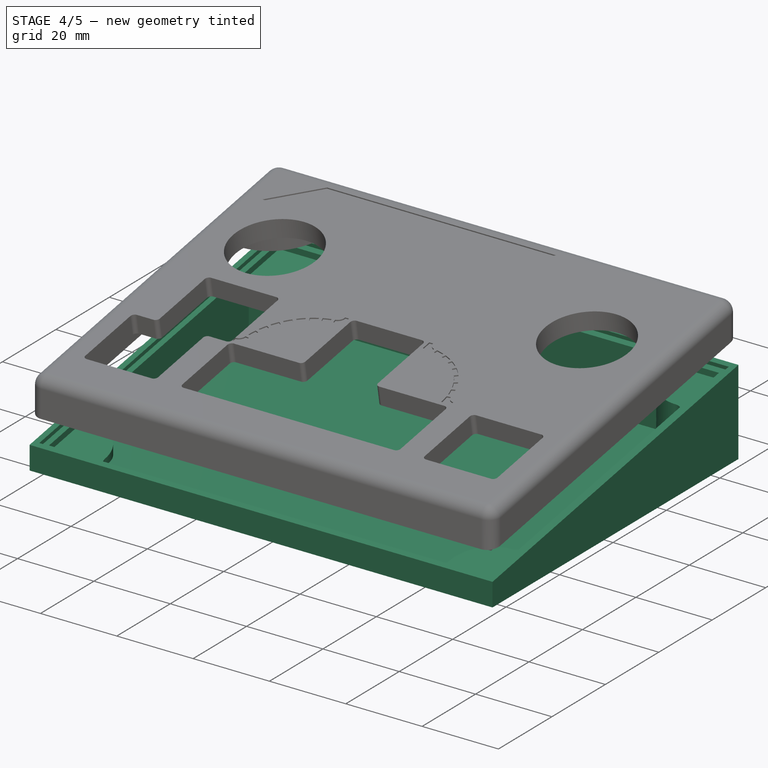
[diagram: stage 4 of 5 — iso view after this stage's code; geometry added in this stage tinted green]
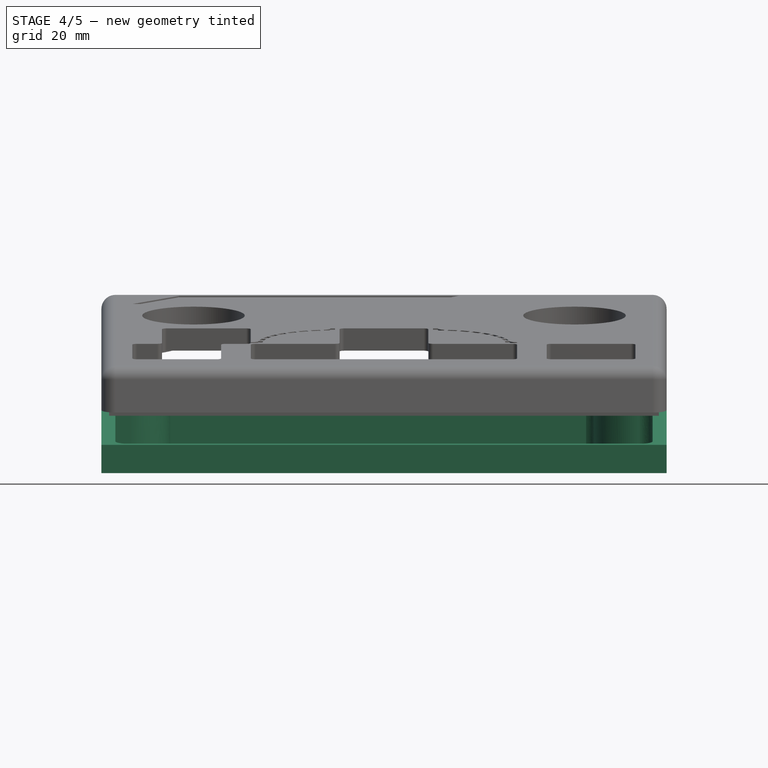
[diagram: stage 4 of 5 — front view after this stage's code; geometry added in this stage tinted green]
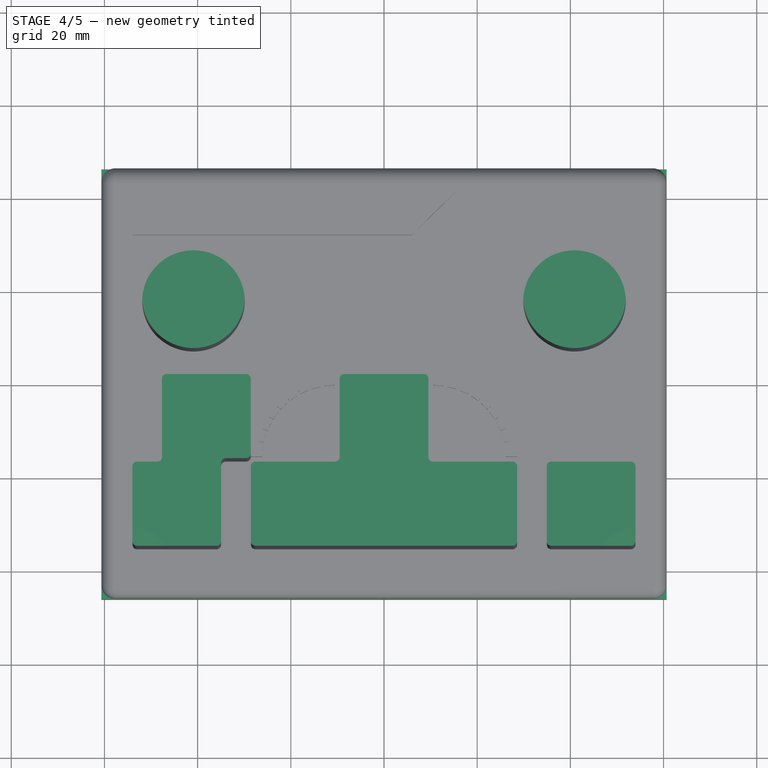
[diagram: stage 4 of 5 — top view after this stage's code; geometry added in this stage tinted green]
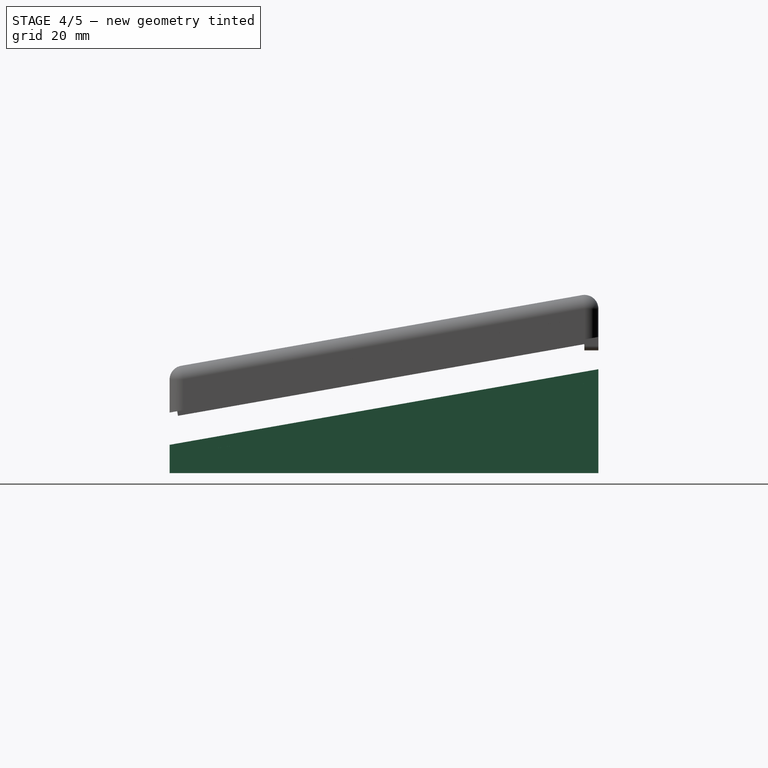
[diagram: stage 4 of 5 — right view after this stage's code; geometry added in this stage tinted green]
FEATURE [Spreadsheet::Sheet] Spreadsheet  label="Params"
  cells = A1=PCB Width; B1(PcbWidth)=114.3; A2=PCB Depth; B2(PcbDepth)=86.36; A3=Bottom half height; B3(BottomHeight)=5; A4=Wall thickness; B4(WallThickness)=3; A5=Wall offset; B5(WallOffset)=0.5; A6=Screw distance from PCB border; B6(ScrewDistance)=5; A7=Slope; B7(Slope)=10; A8=Above PCB clearance; B8(Clearance)==6.2 - PcbThickness; A9=Threaded insert diameter; B9(ThreadedInsertDiameter)=3.2; A10=Threaded insert depth; B10(ThreadedInsertDepth)=4; A11=Screw hole diameter; B11(ScrewHoleDiameter)=2.5; A12=PCB Thickness; B12(PcbThickness)=1.6; A13=Fillet radius; B13(FilletRadius)=3; A14=Feet Diameter; B14(FeetDiameter)=13; A15=Cable Pocket Distance; B15(CablePocketDistance)=16.256
FEATURE [Sketcher::SketchObject] Sketch  label="BottomSketch"
  FullyConstrained = true
  MapMode = 5
  Placement = pos=(0,0,0) rot=(0.57735,0.57735,0.57735;2.0944rad)
  Support = -> [YZ_Plane]
  expr: .Constraints.BoxDepth = (<<Params>>.PcbDepth + <<Params>>.WallOffset * 2) * cos(<<Params>>.Slope)
  expr: .Constraints.FrontHeight = <<Params>>.BottomHeight - <<Params>>.WallThickness + <<Params>>.PcbThickness
  expr: .Constraints.MiddleAlignment = .Constraints.BoxDepth / 2
  expr: .Constraints.Slope = <<Params>>.Slope
  sketch-geometry (4):
    g0: LineSegment StartX=-43.0164 StartY=0 StartZ=0 EndX=43.0164 EndY=0 EndZ=0
    g1: LineSegment StartX=43.0164 StartY=0 StartZ=0 EndX=43.0164 EndY=18.7699 EndZ=0
    g2: LineSegment StartX=43.0164 StartY=18.7699 StartZ=0 EndX=-43.0164 EndY=3.6 EndZ=0
    g3: LineSegment StartX=-43.0164 StartY=3.6 StartZ=0 EndX=-43.0164 EndY=0 EndZ=0
  constraints (12):
    c: Horizontal(g0)  'BottomHorizontality'
    c: Coincident(g0,g1)
    c: Vertical(g1)  'BackVerticality'
    c: Coincident(g1,g2)
    c: Coincident(g2,g3)
    c: Coincident(g3,g0)
    c: Vertical(g3)  'FrontVerticality'
    c: DistanceX(g0,g0) = 86.0328  'BoxDepth'
    c: Angle(g0,g2) = 0.174533  'Slope'
    c: DistanceY(g3,g3) = 3.6  'FrontHeight'
    c: DistanceY(g0,g-1) = 0  'BottomAlignment'
    c: DistanceX(g0,g-1) = 43.0164  'MiddleAlignment'
FEATURE [PartDesign::Pad] Pad
  Direction = (1,-2e-16,3e-16)
  Length = 115.3
  Length2 = 10
  Midplane = true
  Placement = pos=(0,0,0) rot=(0.57735,0.57735,0.57735;2.0944rad)
  Profile = -> Sketch
  ReferenceAxis = -> Sketch [N_Axis]
  Type = 0
  expr: Length = <<Params>>.PcbWidth + <<Params>>.WallOffset * 2
FEATURE [PartDesign::Thickness] Thickness  label="BottomThickness"
  Base = -> Pad [Face3]
  BaseFeature = -> Pad
  Intersection = false
  Join = 1
  Mode = 0
  SupportTransform = false
  Value = 3
  expr: Value = <<Params>>.WallThickness
FEATURE [Sketcher::SketchObject] Sketch001  label="FittingHoleSketch"
  ExternalGeometry = -> [Thickness]
  FullyConstrained = true
  MapMode = 5
  Placement = pos=(-3.9e-15,-1.91274,10.8477) rot=(1,0,0;0.174533rad)
  Support = -> [Thickness]
  expr: .Constraints.Depth = <<Params>>.PcbDepth + <<Params>>.WallThickness / cos(<<Params>>.Slope) + <<Params>>.WallOffset * 2
  expr: .Constraints.PositionHalfWallHoriz = <<Params>>.WallThickness / 2
  expr: .Constraints.PositionHalfWallVert = -<<Params>>.WallThickness / cos(<<Params>>.Slope) / 2
  expr: .Constraints.Width = <<Params>>.PcbWidth + <<Params>>.WallThickness + <<Params>>.WallOffset * 2
  sketch-geometry (4):
    g0: LineSegment StartX=-59.15 StartY=-43.2609 StartZ=0 EndX=-59.15 EndY=47.1454 EndZ=0
    g1: LineSegment StartX=-59.15 StartY=47.1454 StartZ=0 EndX=59.15 EndY=47.1454 EndZ=0
    g2: LineSegment StartX=59.15 StartY=47.1454 StartZ=0 EndX=59.15 EndY=-43.2609 EndZ=0
    g3: LineSegment StartX=59.15 StartY=-43.2609 StartZ=0 EndX=-59.15 EndY=-43.2609 EndZ=0
  constraints (12):
    c: Coincident(g0,g1)
    c: Coincident(g1,g2)
    c: Coincident(g2,g3)
    c: Coincident(g3,g0)
    c: Horizontal(g1)
    c: Horizontal(g3)
    c: Vertical(g0)
    c: Vertical(g2)
    c: DistanceX(g1,g1) = 118.3  'Width'
    c: DistanceY(g0,g0) = 90.4063  'Depth'
    c: DistanceY(g0,g-3) = -1.52314  'PositionHalfWallVert'
    c: DistanceX(g0,g-4) = 1.5  'PositionHalfWallHoriz'
FEATURE [PartDesign::Pocket] Pocket
  BaseFeature = -> Thickness
  Direction = (5e-16,0.173648,-0.984808)
  Length = 1
  Length2 = 5
  Profile = -> Sketch001
  ReferenceAxis = -> Sketch001 [N_Axis]
  Type = 0
FEATURE [PartDesign::Plane] DatumPlane  label="PcbBaseDatumPlane"
  AttachmentOffset = pos=(0,0,-1.57569) rot=(0,0,1;0rad)
  Length = 143.252
  MapMode = 5
  Placement = pos=(-4e-15,-1.48078,8.39793) rot=(1,0,0;0.174533rad)
  ResizeMode = 0
  Width = 121.269
  expr: .AttachmentOffset.Base.z = -<<Params>>.PcbThickness * cos(<<Params>>.Slope)
FEATURE [Sketcher::SketchObject] Sketch009  label="BottomScrewPillarsSketch"
  ExternalGeometry = -> [Pocket]
  FullyConstrained = true
  MapMode = 5
  Placement = pos=(-4e-15,-1.48078,8.39793) rot=(1,0,0;0.174533rad)
  Support = -> [DatumPlane]
  expr: Constraints[19] = <<Params>>.ScrewDistance + <<Params>>.ScrewHoleDiameter * 3 + 3
  expr: Constraints[22] = <<Params>>.ScrewDistance + <<Params>>.ScrewHoleDiameter * 3 + 3
  expr: Constraints[36] = <<Params>>.ScrewDistance + <<Params>>.ScrewHoleDiameter * 3 + 3
  expr: Constraints[39] = <<Params>>.ScrewDistance + <<Params>>.ScrewHoleDiameter * 3 + 3
  expr: Constraints[4] = <<Params>>.ScrewDistance + <<Params>>.ScrewHoleDiameter * 3 + 3
  expr: Constraints[5] = <<Params>>.ScrewDistance + <<Params>>.ScrewHoleDiameter * 3 + 3
  expr: Constraints[61] = <<Params>>.ScrewDistance + <<Params>>.ScrewHoleDiameter * 3 + 5
  sketch-geometry (20):
    g0: LineSegment StartX=57.65 StartY=45.4459 StartZ=0 EndX=42.15 EndY=45.4459 EndZ=0
    g1: LineSegment StartX=57.65 StartY=45.4459 StartZ=0 EndX=57.65 EndY=29.9459 EndZ=0
    g2: ArcOfCircle CenterX=42.15 CenterY=42.4459 CenterZ=0 NormalX=0 NormalY=0 NormalZ=1 AngleXU=0 Radius=3 StartAngle=7e-16 EndAngle=1.5708
    g3: ArcOfCircle CenterX=54.65 CenterY=29.9459 CenterZ=0 NormalX=0 NormalY=0 NormalZ=1 AngleXU=0 Radius=3 StartAngle=-1.8e-15 EndAngle=1.5708
    g4: ArcOfCircle CenterX=54.65 CenterY=42.4459 CenterZ=0 NormalX=0 NormalY=0 NormalZ=1 AngleXU=0 Radius=9.5 StartAngle=3.14159 EndAngle=4.71239
    g5: LineSegment StartX=-57.65 StartY=-41.9141 StartZ=0 EndX=-57.65 EndY=-26.4141 EndZ=0
    g6: LineSegment StartX=-57.65 StartY=-41.9141 StartZ=0 EndX=-42.15 EndY=-41.9141 EndZ=0
    g7: ArcOfCircle CenterX=-54.65 CenterY=-26.4141 CenterZ=0 NormalX=0 NormalY=0 NormalZ=1 AngleXU=0 Radius=3 StartAngle=3.14159 EndAngle=4.71239
    g8: ArcOfCircle CenterX=-42.15 CenterY=-38.9141 CenterZ=0 NormalX=0 NormalY=0 NormalZ=1 AngleXU=0 Radius=3 StartAngle=3.14159 EndAngle=4.71239
    g9: ArcOfCircle CenterX=-54.65 CenterY=-38.9141 CenterZ=0 NormalX=0 NormalY=0 NormalZ=1 AngleXU=0 Radius=9.5 StartAngle=9e-16 EndAngle=1.5708
    g10: LineSegment StartX=57.65 StartY=-41.9141 StartZ=0 EndX=42.15 EndY=-41.9141 EndZ=0
    g11: LineSegment StartX=57.65 StartY=-41.9141 StartZ=0 EndX=57.65 EndY=-26.4141 EndZ=0
    g12: ArcOfCircle CenterX=42.15 CenterY=-38.9141 CenterZ=0 NormalX=0 NormalY=0 NormalZ=1 AngleXU=0 Radius=3 StartAngle=4.71239 EndAngle=6.28319
    g13: ArcOfCircle CenterX=54.65 CenterY=-26.4141 CenterZ=0 NormalX=0 NormalY=0 NormalZ=1 AngleXU=0 Radius=3 StartAngle=4.71239 EndAngle=6.28319
    g14: ArcOfCircle CenterX=54.65 CenterY=-38.9141 CenterZ=0 NormalX=0 NormalY=0 NormalZ=1 AngleXU=0 Radius=9.5 StartAngle=1.5708 EndAngle=3.14159
    g15: LineSegment StartX=-57.65 StartY=45.4459 StartZ=0 EndX=-45.9 EndY=45.4459 EndZ=0
    g16: LineSegment StartX=-45.9 StartY=45.4459 StartZ=0 EndX=-45.9 EndY=42.4459 EndZ=0
    g17: ArcOfCircle CenterX=-54.65 CenterY=42.4459 CenterZ=0 NormalX=0 NormalY=0 NormalZ=1 AngleXU=0 Radius=8.75 StartAngle=4.71239 EndAngle=6.28319
    g18: LineSegment StartX=-54.65 StartY=33.6959 StartZ=0 EndX=-57.65 EndY=33.6959 EndZ=0
    g19: LineSegment StartX=-57.65 StartY=33.6959 StartZ=0 EndX=-57.65 EndY=45.4459 EndZ=0
  constraints (65):
    c: Coincident(g0,g-4)
    c: PointOnObject(g0,g-4)
    c: Coincident(g1,g0)
    c: Vertical(g1)
    c: DistanceY(g1,g1) = 15.5
    c: DistanceX(g0,g0) = 15.5
    c: Coincident(g2,g0)
    c: Horizontal(g2,g2)
    c: Vertical(g2,g0)
    c: Radius(g2) = 3
    c: Coincident(g3,g1)
    c: Vertical(g3,g3)
    c: Radius(g3) = 3
    c: Coincident(g4,g2)
    c: Coincident(g4,g3)
    c: Horizontal(g2,g4)
    c: Vertical(g4,g3)
    c: Coincident(g5,g-5)
    c: PointOnObject(g5,g-3)
    c: DistanceY(g5,g5) = 15.5
    c: Coincident(g6,g5)
    c: PointOnObject(g6,g-5)
    c: DistanceX(g6,g6) = 15.5
    c: Coincident(g7,g5)
    c: Vertical(g7,g7)
    c: Horizontal(g7,g5)
    c: Radius(g7) = 3
    c: Coincident(g8,g6)
    c: Horizontal(g8,g8)
    c: Vertical(g8,g6)
    c: Radius(g8) = 3
    c: Coincident(g9,g8)
    c: Coincident(g9,g7)
    c: Vertical(g9,g7)
    c: Coincident(g10,g-5)
    c: PointOnObject(g10,g-5)
    c: DistanceX(g10,g10) = 15.5
    c: Coincident(g11,g10)
    c: Vertical(g11)
    c: DistanceY(g11,g11) = 15.5
    c: Coincident(g12,g10)
    c: Horizontal(g12,g12)
    c: Vertical(g12,g10)
    c: Radius(g12) = 3
    c: Coincident(g13,g11)
    c: Vertical(g13,g13)
    c: Horizontal(g13,g11)
    c: Radius(g13) = 3
    c: Coincident(g14,g12)
    c: Coincident(g14,g13)
    c: Horizontal(g14,g12)
    c: Coincident(g-4,g15)
    c: Horizontal(g15)
    c: Coincident(g15,g16)
    c: Vertical(g16)
    c: Tangent(g16,g17) = 1.5708
    c: Coincident(g17,g18)
    c: PointOnObject(g18,g-3)
    c: Horizontal(g18)
    c: Coincident(g18,g19)
    c: Coincident(g19,g15)
    c: Diameter(g17) = 17.5
    c: Equal(g19,g15)
    c: Equal(g16,g18)
    c: DistanceY(g16,g16) = 3
FEATURE [PartDesign::Pad] Pad007  label="BottomScrewPillars"
  BaseFeature = -> Pocket
  Direction = (0,0,1)
  Length = 10
  Length2 = 10
  Profile = -> Sketch009
  ReferenceAxis = -> Pocket [Edge8]
  Type = 3
  UpToFace = -> Pocket [Face1]
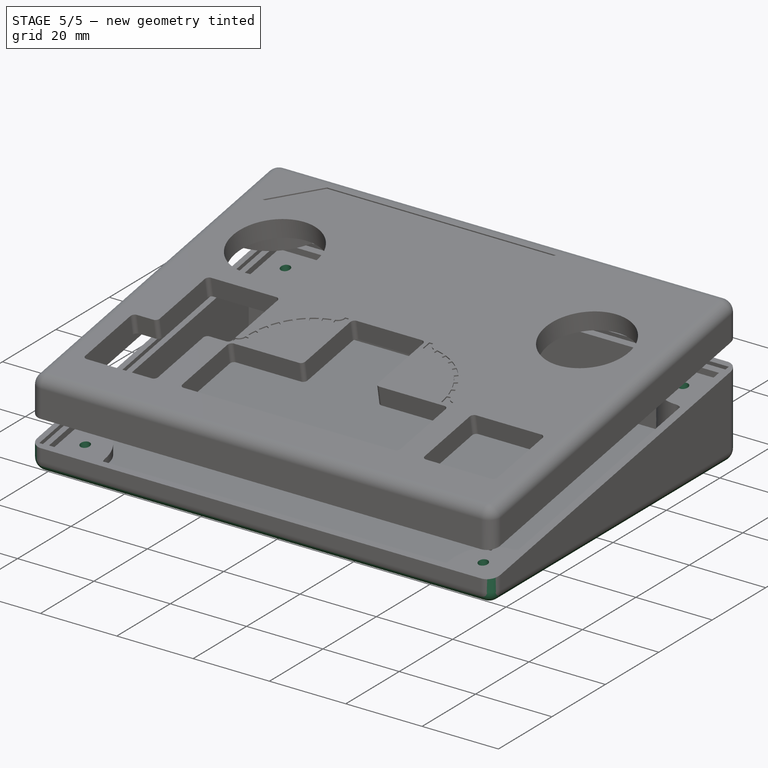
[diagram: stage 5 of 5 — iso view after this stage's code; geometry added in this stage tinted green]
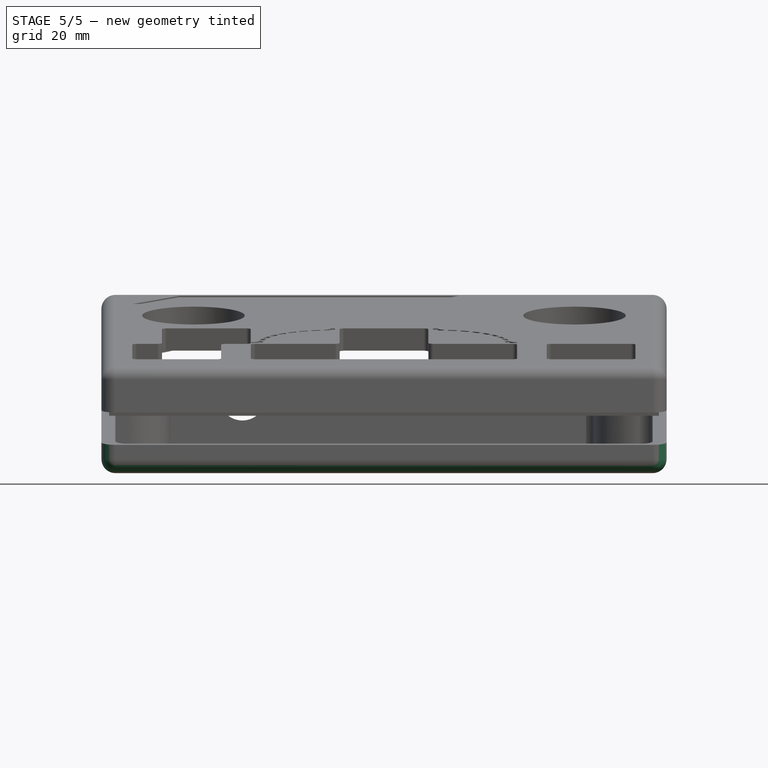
[diagram: stage 5 of 5 — front view after this stage's code; geometry added in this stage tinted green]
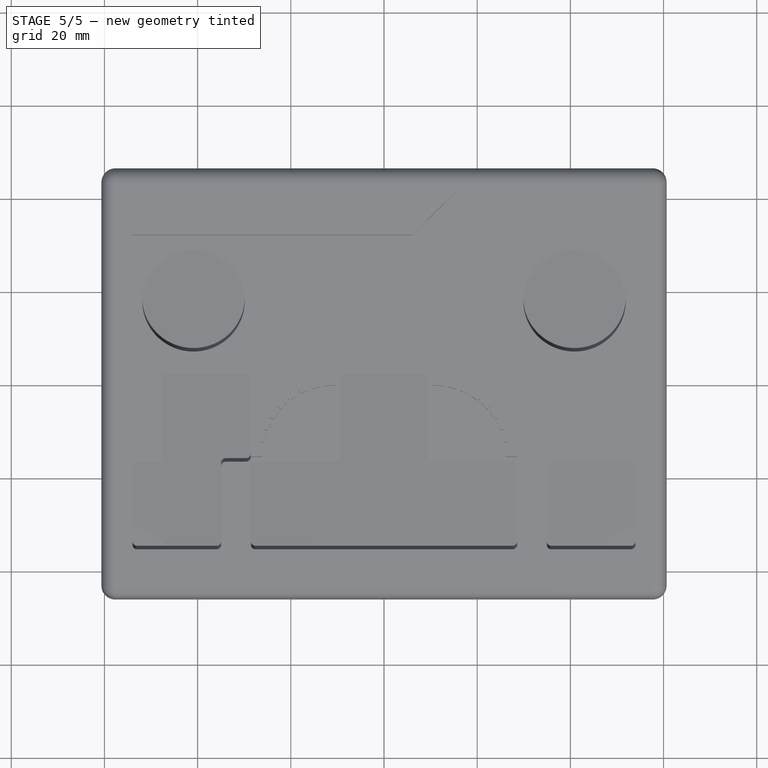
[diagram: stage 5 of 5 — top view after this stage's code; geometry added in this stage tinted green]
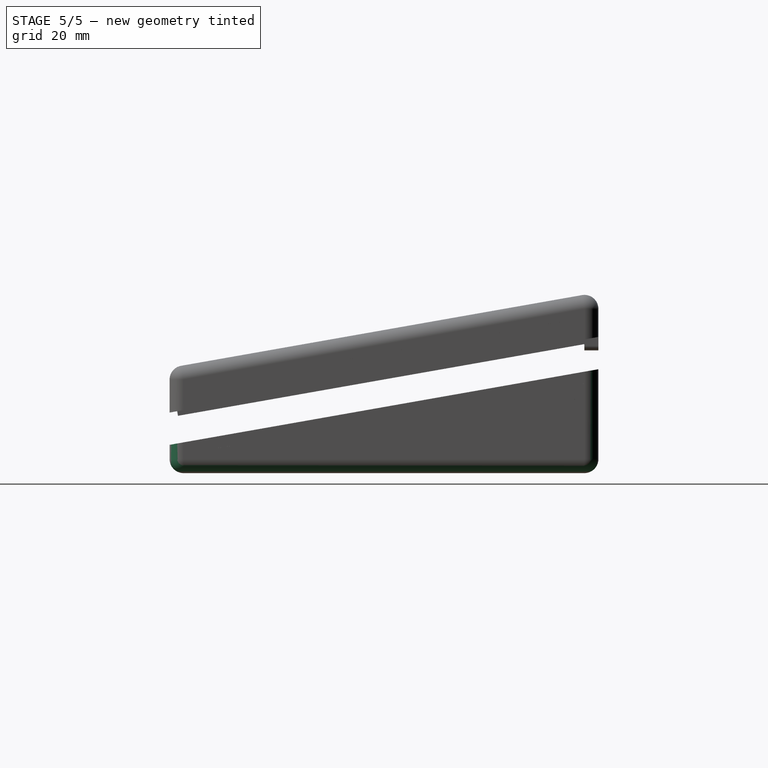
[diagram: stage 5 of 5 — right view after this stage's code; geometry added in this stage tinted green]
FEATURE [Sketcher::SketchObject] Sketch010  label="TopHolesSketch"
  ExternalGeometry = -> [Pocket001]
  FullyConstrained = true
  MapMode = 5
  Placement = pos=(-9.6e-15,-4.73936,26.8783) rot=(0.086827,0.086827,-0.992433;1.57839rad)
  Support = -> [Pocket001]
  expr: .Constraints.KnobToTop = 24.8 - <<Params>>.FilletRadius + <<Params>>.WallThickness + <<Params>>.WallOffset
  expr: Constraints[25] = .Constraints.OneU * 3
  expr: Constraints[26] = .Constraints.OneU
  expr: Constraints[27] = .Constraints.OneU
  expr: Constraints[28] = 38.1 - <<Params>>.FilletRadius - 19.05 / 2 + <<Params>>.WallThickness + <<Params>>.WallOffset
  expr: Constraints[29] = 69.25 + 19.05 / 2 - <<Params>>.FilletRadius + <<Params>>.WallThickness + <<Params>>.WallOffset
  expr: Constraints[2] = 16.26 - <<Params>>.FilletRadius + <<Params>>.WallThickness + <<Params>>.WallOffset
  expr: Constraints[38] = .Constraints.OneU
  expr: Constraints[39] = .Constraints.OneU
  expr: Constraints[4] = 16.26 - <<Params>>.FilletRadius + <<Params>>.WallThickness + <<Params>>.WallOffset
  expr: Constraints[58] = .Constraints.OneU
  expr: Constraints[5] = .Constraints.KnobToTop
  expr: Constraints[65] = 9.5 - <<Params>>.FilletRadius + <<Params>>.WallThickness + <<Params>>.WallOffset
  sketch-geometry (22):
    g0: Circle CenterX=-22.6635 CenterY=-40.89 CenterZ=0 NormalX=0 NormalY=0 NormalZ=1 AngleXU=0 Radius=11
    g1: Circle CenterX=-22.6635 CenterY=40.89 CenterZ=0 NormalX=0 NormalY=0 NormalZ=1 AngleXU=0 Radius=11
    g2: LineSegment StartX=-6.78849 StartY=-9.525 StartZ=0 EndX=-6.78849 EndY=9.525 EndZ=0
    g3: LineSegment StartX=-6.78849 StartY=9.525 StartZ=0 EndX=12.2615 EndY=9.525 EndZ=0
    g4: LineSegment StartX=12.2615 StartY=9.525 StartZ=0 EndX=12.2615 EndY=28.575 EndZ=0
    g5: LineSegment StartX=12.2615 StartY=28.575 StartZ=0 EndX=31.3115 EndY=28.575 EndZ=0
    g6: LineSegment StartX=31.3115 StartY=28.575 StartZ=0 EndX=31.3115 EndY=-28.575 EndZ=0
    g7: LineSegment StartX=31.3115 StartY=-28.575 StartZ=0 EndX=12.2615 EndY=-28.575 EndZ=0
    g8: LineSegment StartX=12.2615 StartY=-28.575 StartZ=0 EndX=12.2615 EndY=-9.525 EndZ=0
    g9: LineSegment StartX=12.2615 StartY=-9.525 StartZ=0 EndX=-6.78849 EndY=-9.525 EndZ=0
    g10: LineSegment StartX=12.2615 StartY=34.925 StartZ=0 EndX=31.3115 EndY=34.925 EndZ=0
    g11: LineSegment StartX=31.3115 StartY=34.925 StartZ=0 EndX=31.3115 EndY=53.975 EndZ=0
    g12: LineSegment StartX=31.3115 StartY=53.975 StartZ=0 EndX=12.2615 EndY=53.975 EndZ=0
    g13: LineSegment StartX=12.2615 StartY=53.975 StartZ=0 EndX=12.2615 EndY=34.925 EndZ=0
    g14: LineSegment StartX=31.3115 StartY=-54 StartZ=0 EndX=31.3115 EndY=-34.95 EndZ=0
    g15: LineSegment StartX=31.3115 StartY=-34.95 StartZ=0 EndX=12.2615 EndY=-34.95 EndZ=0
    g16: LineSegment StartX=12.2615 StartY=-34.95 StartZ=0 EndX=12.2615 EndY=-28.6 EndZ=0
    g17: LineSegment StartX=12.2615 StartY=-28.6 StartZ=0 EndX=-6.78849 EndY=-28.6 EndZ=0
    g18: LineSegment StartX=-6.78849 StartY=-28.6 StartZ=0 EndX=-6.78849 EndY=-47.65 EndZ=0
    g19: LineSegment StartX=-6.78849 StartY=-47.65 StartZ=0 EndX=12.2615 EndY=-47.65 EndZ=0
    g20: LineSegment StartX=12.2615 StartY=-47.65 StartZ=0 EndX=12.2615 EndY=-54 EndZ=0
    g21: LineSegment StartX=12.2615 StartY=-54 StartZ=0 EndX=31.3115 EndY=-54 EndZ=0
  constraints (66):
    c: Diameter(g0) = 22
    c: DistanceX(g-4,g0) = 25.3  'KnobToTop'
    c: DistanceY(g-4,g0) = 16.76
    c: Diameter(g1) = 22
    c: DistanceY(g1,g-4) = 16.76
    c: DistanceX(g-4,g1) = 25.3
    c: Vertical(g2)
    c: Coincident(g2,g3)
    c: Horizontal(g3)
    c: Coincident(g3,g4)
    c: Vertical(g4)
    c: Coincident(g4,g5)
    c: Horizontal(g5)
    c: Coincident(g5,g6)
    c: Vertical(g6)
    c: Coincident(g6,g7)
    c: Horizontal(g7)
    c: Coincident(g7,g8)
    c: Vertical(g8)
    c: Coincident(g8,g9)
    c: Coincident(g9,g2)
    c: Horizontal(g9)
    c: Equal(g9,g3)
    c: Equal(g8,g4)
    c: DistanceY(g2,g2) = 19.05  'OneU'
    c: DistanceY(g6,g6) = 57.15
    c: DistanceX(g9,g9) = 19.05
    c: DistanceX(g5,g5) = 19.05
    c: DistanceY(g-3,g6) = 29.075
    c: DistanceX(g-4,g6) = 79.275
    c: Coincident(g10,g11)
    c: Coincident(g11,g12)
    c: Coincident(g12,g13)
    c: Coincident(g13,g10)
    c: Horizontal(g10)
    c: Horizontal(g12)
    c: Vertical(g11)
    c: Vertical(g13)
    c: DistanceY(g13,g13) = 19.05
    c: DistanceX(g10,g10) = 19.05
    c: DistanceX(g10,g4) = 0
    c: DistanceY(g4,g12) = 25.4
    c: Vertical(g14)
    c: Coincident(g14,g15)
    c: Horizontal(g15)
    c: Coincident(g15,g16)
    c: Vertical(g16)
    c: Coincident(g16,g17)
    c: Horizontal(g17)
    c: Coincident(g17,g18)
    c: Vertical(g18)
    c: Coincident(g18,g19)
    c: Horizontal(g19)
    c: Coincident(g19,g20)
    c: Vertical(g20)
    c: Coincident(g20,g21)
    c: Coincident(g21,g14)
    c: Horizontal(g21)
    c: DistanceX(g19,g19) = 19.05
    c: Equal(g19,g21)
    c: Equal(g17,g19)
    c: Equal(g18,g19)
    c: Equal(g16,g20)
    c: DistanceX(g7,g16) = 0
    c: DistanceY(g16,g16) = 6.35
    c: DistanceY(g-3,g18) = 10
FEATURE [PartDesign::Fillet] Fillet001  label="BottomFillet"
  Base = -> Pad007 [Face34,Edge84,Edge89,Edge83,Edge87]
  BaseFeature = -> Pad007
  Radius = 3
  SupportTransform = false
  UseAllEdges = false
  expr: Radius = <<Params>>.FilletRadius
FEATURE [Sketcher::SketchObject] Sketch017  label="CableHoleSketch"
  ExternalGeometry = -> [Fillet001]
  FullyConstrained = true
  MapMode = 5
  Placement = pos=(2.02e-14,46.0164,-1.01e-14) rot=(0,0.707107,0.707107;3.14159rad)
  Support = -> [Fillet001]
  expr: Constraints[9] = <<Params>>.CablePocketDistance + <<Params>>.WallThickness + <<Params>>.WallOffset - <<Params>>.FilletRadius + 5.5
  sketch-geometry (4):
    g0: LineSegment StartX=25.394 StartY=19.2989 StartZ=0 EndX=25.394 EndY=13.2989 EndZ=0
    g1: ArcOfCircle CenterX=30.394 CenterY=13.2989 CenterZ=0 NormalX=0 NormalY=0 NormalZ=1 AngleXU=0 Radius=5 StartAngle=3.14159 EndAngle=6.28319
    g2: LineSegment StartX=35.394 StartY=13.2989 StartZ=0 EndX=35.394 EndY=19.2989 EndZ=0
    g3: LineSegment StartX=25.394 StartY=19.2989 StartZ=0 EndX=35.394 EndY=19.2989 EndZ=0
  constraints (12):
    c: PointOnObject(g0,g-3)
    c: Vertical(g0)
    c: Tangent(g0,g1) = -1.5708
    c: Coincident(g1,g2)
    c: PointOnObject(g2,g-3)
    c: Vertical(g2)
    c: DistanceX(g0,g2) = 10
    c: DistanceY(g2,g2) = 6
    c: Equal(g2,g0)
    c: DistanceX(g2,g-3) = 22.256
    c: Coincident(g3,g0)
    c: Coincident(g3,g2)
FEATURE [PartDesign::Pocket] Pocket008  label="CableHole"
  BaseFeature = -> Fillet001
  Direction = (-4e-16,-1,2e-16)
  Length = 3
  Length2 = 5
  Profile = -> Sketch017
  ReferenceAxis = -> Sketch017 [N_Axis]
  Type = 0
  expr: Length = <<Params>>.WallThickness
FEATURE [Sketcher::SketchObject] Sketch019  label="ScrewHoleSketch"
  ExternalGeometry = -> [Pocket008]
  FullyConstrained = true
  MapMode = 5
  Placement = pos=(0,-1.48078,8.39793) rot=(1,0,0;0.174533rad)
  Support = -> [Pocket008]
  expr: Constraints[0] = <<Params>>.ScrewHoleDiameter
  expr: Constraints[10] = <<Params>>.WallOffset + <<Params>>.ScrewDistance
  expr: Constraints[11] = <<Params>>.WallOffset + <<Params>>.ScrewDistance
  expr: Constraints[1] = <<Params>>.WallOffset + <<Params>>.ScrewDistance
  expr: Constraints[2] = <<Params>>.WallOffset + <<Params>>.ScrewDistance
  expr: Constraints[3] = <<Params>>.ScrewHoleDiameter
  expr: Constraints[4] = <<Params>>.WallOffset + <<Params>>.ScrewDistance
  expr: Constraints[5] = <<Params>>.WallOffset + <<Params>>.ScrewDistance
  expr: Constraints[6] = <<Params>>.ScrewHoleDiameter
  expr: Constraints[7] = <<Params>>.WallOffset + <<Params>>.ScrewDistance
  expr: Constraints[8] = <<Params>>.WallOffset + <<Params>>.ScrewDistance
  expr: Constraints[9] = <<Params>>.ScrewHoleDiameter
  sketch-geometry (4):
    g0: Circle CenterX=-52.15 CenterY=-36.4141 CenterZ=0 NormalX=0 NormalY=0 NormalZ=1 AngleXU=0 Radius=1.25
    g1: Circle CenterX=52.15 CenterY=-36.4141 CenterZ=0 NormalX=0 NormalY=0 NormalZ=1 AngleXU=0 Radius=1.25
    g2: Circle CenterX=52.15 CenterY=39.6836 CenterZ=0 NormalX=0 NormalY=0 NormalZ=1 AngleXU=0 Radius=1.25
    g3: Circle CenterX=-52.15 CenterY=39.6836 CenterZ=0 NormalX=0 NormalY=0 NormalZ=1 AngleXU=0 Radius=1.25
  constraints (12):
    c: Diameter(g0) = 2.5
    c: DistanceX(g-6,g0) = 5.5
    c: DistanceY(g-6,g0) = 5.5
    c: Diameter(g1) = 2.5
    c: DistanceX(g1,g-5) = 5.5
    c: DistanceY(g-5,g1) = 5.5
    c: Diameter(g2) = 2.5
    c: DistanceX(g2,g-4) = 5.5
    c: DistanceY(g2,g-4) = 5.5
    c: Diameter(g3) = 2.5
    c: DistanceX(g-3,g3) = 5.5
    c: DistanceY(g3,g-3) = 5.5
FEATURE [PartDesign::Pocket] Pocket009  label="ScrewHole"
  BaseFeature = -> Pocket008
  Direction = (0,0.173648,-0.984808)
  Length = 3
  Length2 = 5
  Profile = -> Sketch019
  ReferenceAxis = -> Sketch019 [N_Axis]
  Type = 0
  expr: Length = <<Params>>.WallThickness
FEATURE [Sketcher::SketchObject] Sketch020  label="ScrewAccessHoleSketch"
  ExternalGeometry = -> [Pocket009]
  FullyConstrained = true
  MapMode = 5
  Placement = pos=(0,-0.959837,5.4435) rot=(1,0,0;0.174533rad)
  Support = -> [Pocket009]
  expr: .Constraints.Diam = <<Params>>.ScrewHoleDiameter * 3
  expr: Constraints[3] = .Constraints.Diam
  expr: Constraints[6] = .Constraints.Diam
  expr: Constraints[7] = .Constraints.Diam
  sketch-geometry (4):
    g0: Circle CenterX=-52.15 CenterY=-36.4141 CenterZ=0 NormalX=0 NormalY=0 NormalZ=1 AngleXU=0 Radius=3.75
    g1: Circle CenterX=52.15 CenterY=-36.4141 CenterZ=0 NormalX=0 NormalY=0 NormalZ=1 AngleXU=0 Radius=3.75
    g2: Circle CenterX=-52.15 CenterY=39.6836 CenterZ=0 NormalX=0 NormalY=0 NormalZ=1 AngleXU=0 Radius=3.75
    g3: Circle CenterX=52.15 CenterY=39.6836 CenterZ=0 NormalX=0 NormalY=0 NormalZ=1 AngleXU=0 Radius=3.75
  constraints (8):
    c: Coincident(g0,g-6)
    c: Diameter(g0) = 7.5  'Diam'
    c: Coincident(g1,g-5)
    c: Diameter(g1) = 7.5
    c: Coincident(g2,g-3)
    c: Coincident(g3,g-4)
    c: Diameter(g2) = 7.5
    c: Diameter(g3) = 7.5
FEATURE [PartDesign::Pocket] Pocket010  label="ScrewAccessHole"
  BaseFeature = -> Pocket009
  Direction = (3e-16,-3e-16,-1)
  Length = 5
  Length2 = 5
  Profile = -> Sketch020
  ReferenceAxis = -> Pocket009 [Edge22]
  Type = 1
FEATURE [Sketcher::SketchObject] Sketch021  label="FeetSketch"
  ExternalGeometry = -> [Pocket010]
  FullyConstrained = true
  MapMode = 5
  Placement = pos=(8e-16,-1.3e-15,-3) rot=(1,0,0;3.14159rad)
  Support = -> [Pocket010]
  expr: .Constraints.Vert = <<Params>>.FeetDiameter / 2 + 1
  expr: Constraints[0] = <<Params>>.FeetDiameter
  expr: Constraints[10] = <<Params>>.FeetDiameter / 2 + 1
  expr: Constraints[11] = .Constraints.Vert
  expr: Constraints[1] = <<Params>>.FeetDiameter / 2 + 1
  expr: Constraints[3] = <<Params>>.FeetDiameter
  expr: Constraints[4] = <<Params>>.FeetDiameter / 2 + 1
  expr: Constraints[5] = <<Params>>.FeetDiameter / 2
  expr: Constraints[6] = <<Params>>.FeetDiameter
  expr: Constraints[7] = <<Params>>.FeetDiameter / 2 + 1
  expr: Constraints[8] = <<Params>>.FeetDiameter / 2
  expr: Constraints[9] = <<Params>>.FeetDiameter
  sketch-geometry (4):
    g0: Circle CenterX=-50.15 CenterY=35.5164 CenterZ=0 NormalX=0 NormalY=0 NormalZ=1 AngleXU=0 Radius=6.5
    g1: Circle CenterX=-50.15 CenterY=-36.5164 CenterZ=0 NormalX=0 NormalY=0 NormalZ=1 AngleXU=0 Radius=6.5
    g2: Circle CenterX=50.15 CenterY=-36.5164 CenterZ=0 NormalX=0 NormalY=0 NormalZ=1 AngleXU=0 Radius=6.5
    g3: Circle CenterX=50.15 CenterY=35.5164 CenterZ=0 NormalX=0 NormalY=0 NormalZ=1 AngleXU=0 Radius=6.5
  constraints (12):
    c: Diameter(g0) = 13
    c: DistanceX(g-3,g0) = 7.5
    c: DistanceY(g0,g-3) = 7.5  'Vert'
    c: Diameter(g1) = 13
    c: DistanceX(g-3,g1) = 7.5
    c: DistanceY(g-3,g1) = 6.5
    c: Diameter(g2) = 13
    c: DistanceX(g2,g-4) = 7.5
    c: DistanceY(g-4,g2) = 6.5
    c: Diameter(g3) = 13
    c: DistanceX(g3,g-4) = 7.5
    c: DistanceY(g3,g-4) = 7.5
FEATURE [PartDesign::Pocket] Pocket011  label="FeetPocket"
  BaseFeature = -> Pocket010
  Direction = (-3e-16,4e-16,1)
  Length = 1
  Length2 = 5
  Profile = -> Sketch021
  ReferenceAxis = -> Sketch021 [N_Axis]
  Type = 0
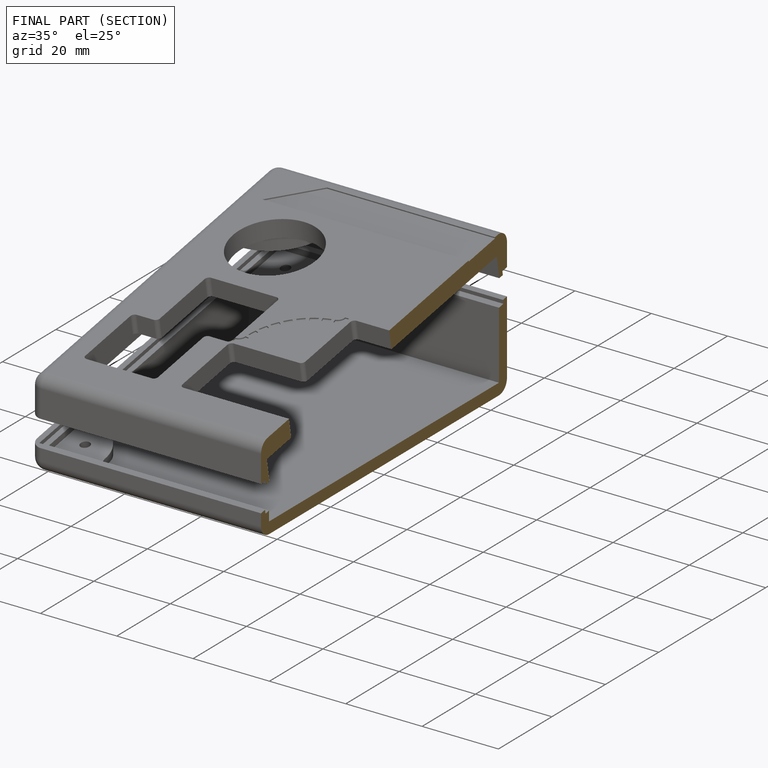
[diagram: finished part — half-section view (interior)]
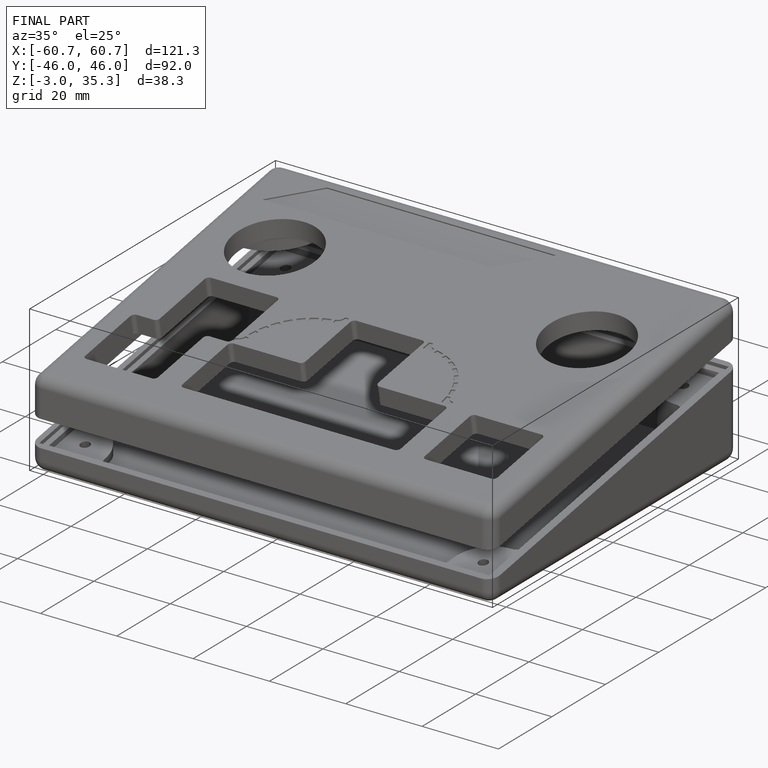
[diagram: finished part — iso view with bounding-box wireframe]
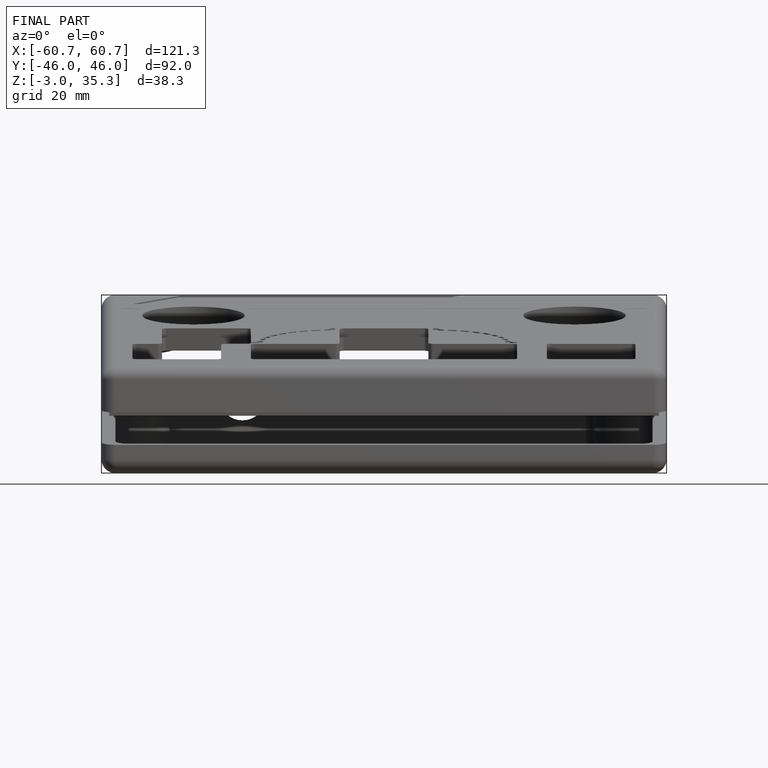
[diagram: finished part — front view with bounding-box wireframe]
